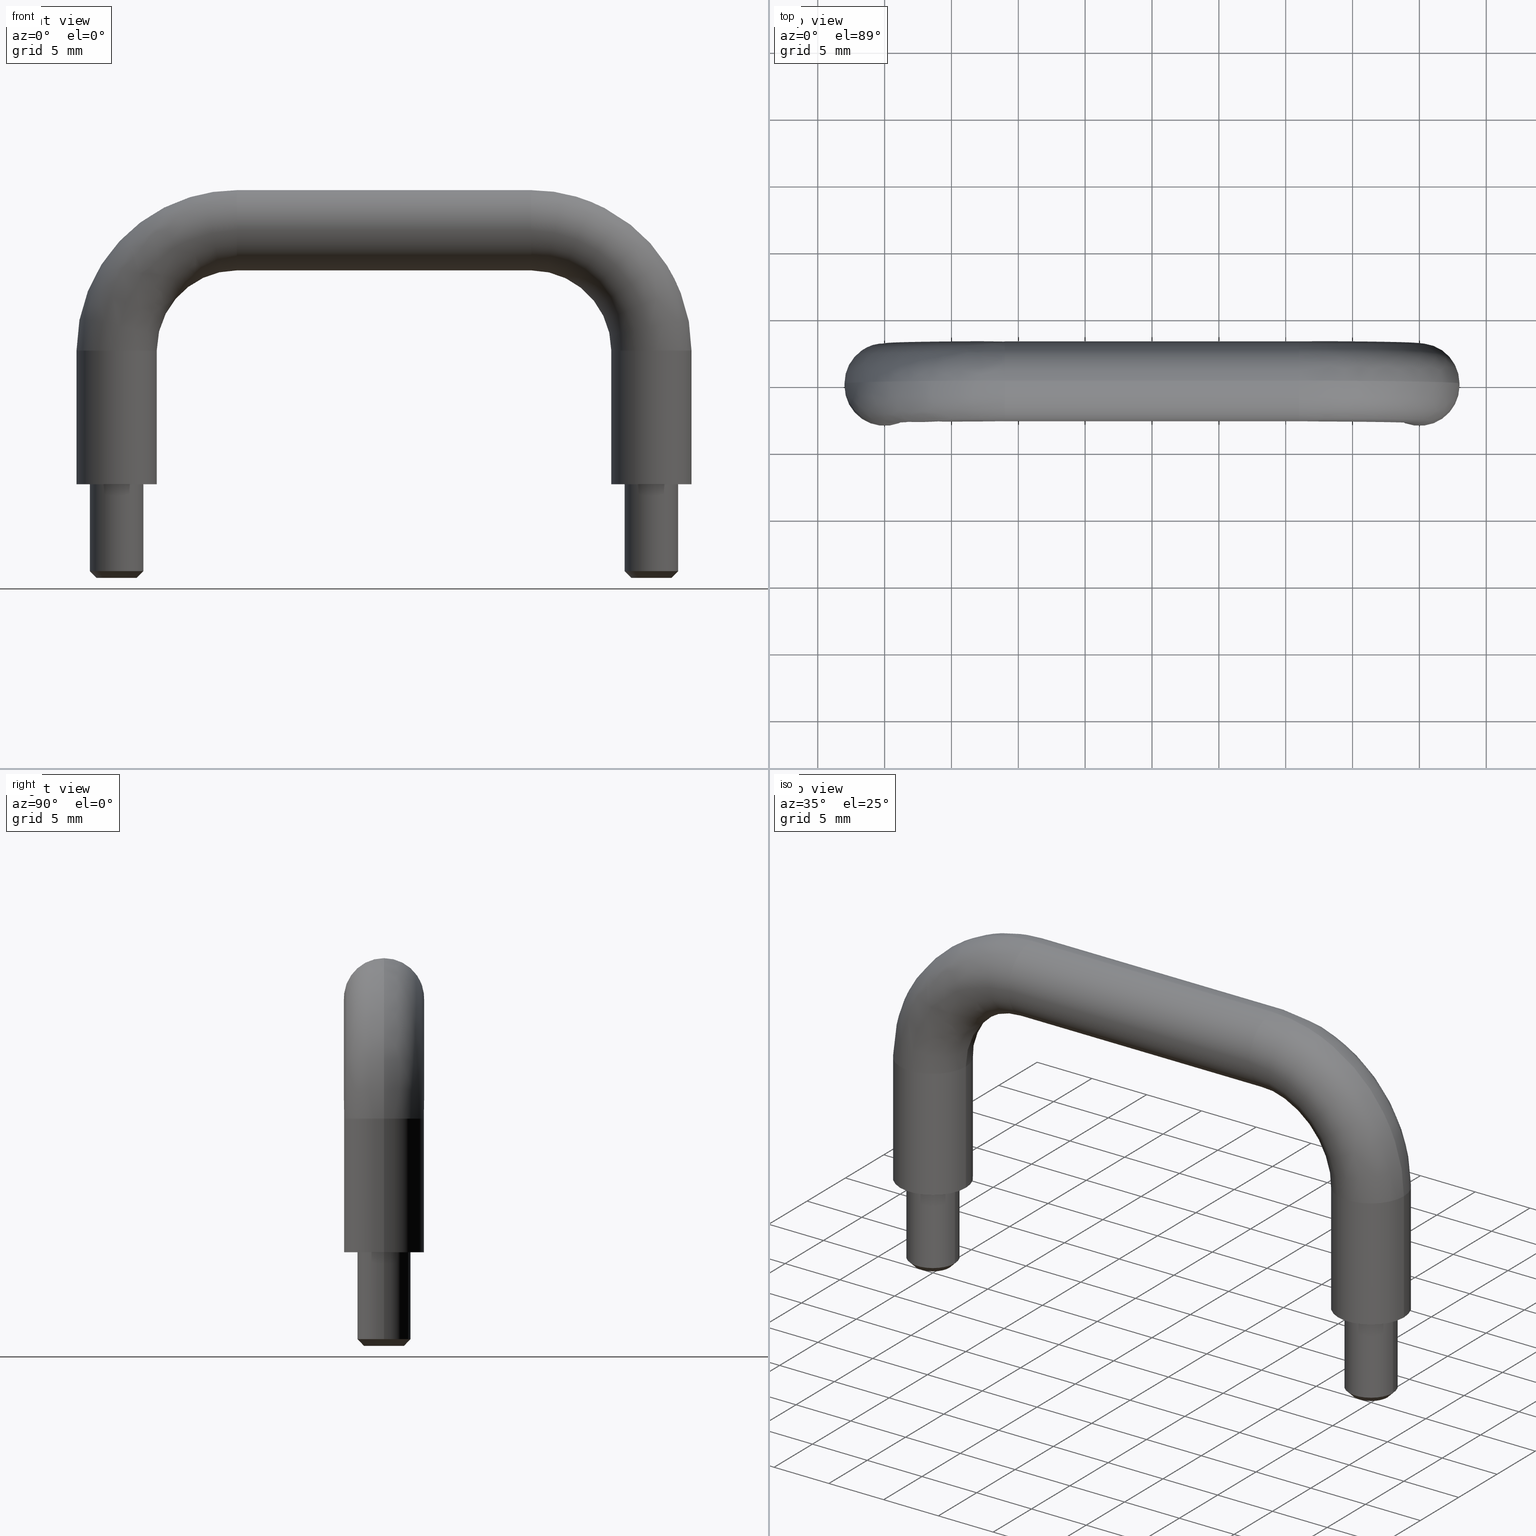
[diagram: canonical four-view strip — front | top / right | iso, engineering-drawing reading convention]
A machine part, canonical four-view strip (front | top / right | iso — engineering-drawing reading convention). The complete STEP part file that produces these views, byte-faithful:
ISO-10303-21;
HEADER;

FILE_DESCRIPTION( (''), '2;1');
FILE_NAME ('PC50.1864.THA_31SUS_2_NEJI_493.stp','2021-09-06T11:20:30',(''),(''),'spGate 17.5.2','','');

FILE_SCHEMA (('AUTOMOTIVE_DESIGN'));
ENDSEC;

DATA;
#10=(GEOMETRIC_REPRESENTATION_CONTEXT(3) GLOBAL_UNCERTAINTY_ASSIGNED_CONTEXT((#11)) GLOBAL_UNIT_ASSIGNED_CONTEXT((#12,#13,#14)) REPRESENTATION_CONTEXT('ID1','3D'));
#11=UNCERTAINTY_MEASURE_WITH_UNIT(LENGTH_MEASURE(0.01),#15,'DISTANCE_ACCURACY_VALUE','Maximum model space distance between geometric entities at asserted connectivities');
#12=(NAMED_UNIT(*) SI_UNIT($,.STERADIAN.) SOLID_ANGLE_UNIT());
#13=(CONVERSION_BASED_UNIT('DEGREE',#16) NAMED_UNIT(#17) PLANE_ANGLE_UNIT());
#14=(LENGTH_UNIT() NAMED_UNIT(*) SI_UNIT(.MILLI.,.METRE.));
#15=(LENGTH_UNIT() NAMED_UNIT(*) SI_UNIT(.MILLI.,.METRE.));
#16=PLANE_ANGLE_MEASURE_WITH_UNIT(PLANE_ANGLE_MEASURE(0.01745329252),#18);
#17=DIMENSIONAL_EXPONENTS(0.0,0.0,0.0,0.0,0.0,0.0,0.0);
#18=(NAMED_UNIT(*) PLANE_ANGLE_UNIT() SI_UNIT($,.RADIAN.));
#19=MANIFOLD_SOLID_BREP('THA_31SUS_2_NEJI',#31);
#20=ADVANCED_BREP_SHAPE_REPRESENTATION('',(#19),#10);
#21=APPLICATION_CONTEXT('');
#22=APPLICATION_PROTOCOL_DEFINITION('International Standard','automotive_design',1999,#21);
#23=PRODUCT_DEFINITION_CONTEXT('',#21,'design');
#24=PRODUCT_CONTEXT('',#21,'mechanical');
#25=PRODUCT('','','',(#24));
#26=PRODUCT_DEFINITION_FORMATION_WITH_SPECIFIED_SOURCE('','',#25,.NOT_KNOWN.);
#27=PRODUCT_RELATED_PRODUCT_CATEGORY('tool','tool',(#25));
#28=PRODUCT_DEFINITION('','',#26,#23);
#29=PRODUCT_DEFINITION_SHAPE('','',#28);
#30=SHAPE_DEFINITION_REPRESENTATION(#29,#20);
#31=CLOSED_SHELL('',(#40,#41,#42,#43,#44,#45,#46,#47,#48,#49,#50,#51,#52,#53,#54,#55,#56,#57,#58,#59,#60,#61));
#32=COLOUR_RGB('',0.00000000000E+00,0.00000000000E+00,0.00000000000E+00);
#33=FILL_AREA_STYLE_COLOUR('',#32);
#34=FILL_AREA_STYLE('',(#33));
#35=SURFACE_STYLE_FILL_AREA(#34);
#36=SURFACE_SIDE_STYLE('',(#35));
#37=SURFACE_STYLE_USAGE(.BOTH.,#36);
#38=PRESENTATION_STYLE_ASSIGNMENT((#37));
#39=STYLED_ITEM('',(#38),#19);
#40=ADVANCED_FACE('',(#63),#62,.T.);
#41=ADVANCED_FACE('',(#73,#74),#72,.F.);
#42=ADVANCED_FACE('',(#84),#83,.T.);
#43=ADVANCED_FACE('',(#94),#93,.T.);
#44=ADVANCED_FACE('',(#104,#105),#103,.F.);
#45=ADVANCED_FACE('',(#115),#114,.T.);
#46=ADVANCED_FACE('',(#125),#124,.T.);
#47=ADVANCED_FACE('',(#135),#134,.T.);
#48=ADVANCED_FACE('',(#145),#144,.T.);
#49=ADVANCED_FACE('',(#155),#154,.T.);
#50=ADVANCED_FACE('',(#165),#164,.T.);
#51=ADVANCED_FACE('',(#175),#174,.T.);
#52=ADVANCED_FACE('',(#185),#184,.T.);
#53=ADVANCED_FACE('',(#195),#194,.T.);
#54=ADVANCED_FACE('',(#205),#204,.T.);
#55=ADVANCED_FACE('',(#215),#214,.T.);
#56=ADVANCED_FACE('',(#225),#224,.T.);
#57=ADVANCED_FACE('',(#235),#234,.T.);
#58=ADVANCED_FACE('',(#245),#244,.T.);
#59=ADVANCED_FACE('',(#255),#254,.T.);
#60=ADVANCED_FACE('',(#265),#264,.T.);
#61=ADVANCED_FACE('',(#275),#274,.T.);
#62=PLANE('',#287);
#63=FACE_OUTER_BOUND('',#288,.T.);
#64=COLOUR_RGB('',1.00000000000E+00,1.00000000000E+00,1.00000000000E+00);
#65=FILL_AREA_STYLE_COLOUR('',#64);
#66=FILL_AREA_STYLE('',(#65));
#67=SURFACE_STYLE_FILL_AREA(#66);
#68=SURFACE_SIDE_STYLE('',(#67));
#69=SURFACE_STYLE_USAGE(.BOTH.,#68);
#70=PRESENTATION_STYLE_ASSIGNMENT((#69));
#71=STYLED_ITEM('',(#70),#40);
#72=PLANE('',#292);
#73=FACE_OUTER_BOUND('',#293,.T.);
#74=FACE_BOUND('',#294,.T.);
#75=COLOUR_RGB('',1.00000000000E+00,1.00000000000E+00,1.00000000000E+00);
#76=FILL_AREA_STYLE_COLOUR('',#75);
#77=FILL_AREA_STYLE('',(#76));
#78=SURFACE_STYLE_FILL_AREA(#77);
#79=SURFACE_SIDE_STYLE('',(#78));
#80=SURFACE_STYLE_USAGE(.BOTH.,#79);
#81=PRESENTATION_STYLE_ASSIGNMENT((#80));
#82=STYLED_ITEM('',(#81),#41);
#83=( BOUNDED_SURFACE() B_SPLINE_SURFACE( 3,3,((#295,#296,#297,#298,#299,#300,#301),(#302,#303,#304,#305,#306,#307,#308),(#309,#310,#311,#312,#313,#314,#315),(#316,#317,#318,#319,#320,#321,#322),(#323,#324,#325,#326,#327,#328,#329),(#330,#331,#332,#333,#334,#335,#336),(#337,#338,#339,#340,#341,#342,#343)), .UNSPECIFIED.,.F.,.F.,.F.) B_SPLINE_SURFACE_WITH_KNOTS((4,1,1,1,4),(4,1,1,1,4),(0.00000000000E+00,2.50000000000E-01,5.00000000000E-01,7.50000000000E-01,1.00000000000E+00),(0.00000000000E+00,2.49559115838E-01,5.00000000000E-01,7.50440884162E-01,1.00000000000E+00), .UNSPECIFIED. ) GEOMETRIC_REPRESENTATION_ITEM() RATIONAL_B_SPLINE_SURFACE(((1.00000000000E+00,1.00000000000E+00,1.00000000000E+00,1.00000000000E+00,1.00000000000E+00,1.00000000000E+00,1.00000000000E+00),(1.00000000000E+00,1.00000000000E+00,1.00000000000E+00,1.00000000000E+00,1.00000000000E+00,1.00000000000E+00,1.00000000000E+00),(1.00000000000E+00,1.00000000000E+00,1.00000000000E+00,1.00000000000E+00,1.00000000000E+00,1.00000000000E+00,1.00000000000E+00),(1.00000000000E+00,1.00000000000E+00,1.00000000000E+00,1.00000000000E+00,1.00000000000E+00,1.00000000000E+00,1.00000000000E+00),(1.00000000000E+00,1.00000000000E+00,1.00000000000E+00,1.00000000000E+00,1.00000000000E+00,1.00000000000E+00,1.00000000000E+00),(1.00000000000E+00,1.00000000000E+00,1.00000000000E+00,1.00000000000E+00,1.00000000000E+00,1.00000000000E+00,1.00000000000E+00),(1.00000000000E+00,1.00000000000E+00,1.00000000000E+00,1.00000000000E+00,1.00000000000E+00,1.00000000000E+00,1.00000000000E+00))) REPRESENTATION_ITEM('') SURFACE() );
#84=FACE_OUTER_BOUND('',#344,.T.);
#85=COLOUR_RGB('',1.00000000000E+00,1.00000000000E+00,1.00000000000E+00);
#86=FILL_AREA_STYLE_COLOUR('',#85);
#87=FILL_AREA_STYLE('',(#86));
#88=SURFACE_STYLE_FILL_AREA(#87);
#89=SURFACE_SIDE_STYLE('',(#88));
#90=SURFACE_STYLE_USAGE(.BOTH.,#89);
#91=PRESENTATION_STYLE_ASSIGNMENT((#90));
#92=STYLED_ITEM('',(#91),#42);
#93=( BOUNDED_SURFACE() B_SPLINE_SURFACE( 3,3,((#345,#346,#347,#348,#349,#350,#351),(#352,#353,#354,#355,#356,#357,#358),(#359,#360,#361,#362,#363,#364,#365),(#366,#367,#368,#369,#370,#371,#372),(#373,#374,#375,#376,#377,#378,#379),(#380,#381,#382,#383,#384,#385,#386),(#387,#388,#389,#390,#391,#392,#393)), .UNSPECIFIED.,.F.,.F.,.F.) B_SPLINE_SURFACE_WITH_KNOTS((4,1,1,1,4),(4,1,1,1,4),(0.00000000000E+00,2.50000000000E-01,5.00000000000E-01,7.50000000000E-01,1.00000000000E+00),(0.00000000000E+00,2.49559115838E-01,5.00000000000E-01,7.50440884162E-01,1.00000000000E+00), .UNSPECIFIED. ) GEOMETRIC_REPRESENTATION_ITEM() RATIONAL_B_SPLINE_SURFACE(((1.00000000000E+00,1.00000000000E+00,1.00000000000E+00,1.00000000000E+00,1.00000000000E+00,1.00000000000E+00,1.00000000000E+00),(1.00000000000E+00,1.00000000000E+00,1.00000000000E+00,1.00000000000E+00,1.00000000000E+00,1.00000000000E+00,1.00000000000E+00),(1.00000000000E+00,1.00000000000E+00,1.00000000000E+00,1.00000000000E+00,1.00000000000E+00,1.00000000000E+00,1.00000000000E+00),(1.00000000000E+00,1.00000000000E+00,1.00000000000E+00,1.00000000000E+00,1.00000000000E+00,1.00000000000E+00,1.00000000000E+00),(1.00000000000E+00,1.00000000000E+00,1.00000000000E+00,1.00000000000E+00,1.00000000000E+00,1.00000000000E+00,1.00000000000E+00),(1.00000000000E+00,1.00000000000E+00,1.00000000000E+00,1.00000000000E+00,1.00000000000E+00,1.00000000000E+00,1.00000000000E+00),(1.00000000000E+00,1.00000000000E+00,1.00000000000E+00,1.00000000000E+00,1.00000000000E+00,1.00000000000E+00,1.00000000000E+00))) REPRESENTATION_ITEM('') SURFACE() );
#94=FACE_OUTER_BOUND('',#394,.T.);
#95=COLOUR_RGB('',1.00000000000E+00,1.00000000000E+00,1.00000000000E+00);
#96=FILL_AREA_STYLE_COLOUR('',#95);
#97=FILL_AREA_STYLE('',(#96));
#98=SURFACE_STYLE_FILL_AREA(#97);
#99=SURFACE_SIDE_STYLE('',(#98));
#100=SURFACE_STYLE_USAGE(.BOTH.,#99);
#101=PRESENTATION_STYLE_ASSIGNMENT((#100));
#102=STYLED_ITEM('',(#101),#43);
#103=PLANE('',#398);
#104=FACE_OUTER_BOUND('',#399,.T.);
#105=FACE_BOUND('',#400,.T.);
#106=COLOUR_RGB('',1.00000000000E+00,1.00000000000E+00,1.00000000000E+00);
#107=FILL_AREA_STYLE_COLOUR('',#106);
#108=FILL_AREA_STYLE('',(#107));
#109=SURFACE_STYLE_FILL_AREA(#108);
#110=SURFACE_SIDE_STYLE('',(#109));
#111=SURFACE_STYLE_USAGE(.BOTH.,#110);
#112=PRESENTATION_STYLE_ASSIGNMENT((#111));
#113=STYLED_ITEM('',(#112),#44);
#114=PLANE('',#404);
#115=FACE_OUTER_BOUND('',#405,.T.);
#116=COLOUR_RGB('',1.00000000000E+00,1.00000000000E+00,1.00000000000E+00);
#117=FILL_AREA_STYLE_COLOUR('',#116);
#118=FILL_AREA_STYLE('',(#117));
#119=SURFACE_STYLE_FILL_AREA(#118);
#120=SURFACE_SIDE_STYLE('',(#119));
#121=SURFACE_STYLE_USAGE(.BOTH.,#120);
#122=PRESENTATION_STYLE_ASSIGNMENT((#121));
#123=STYLED_ITEM('',(#122),#45);
#124=CYLINDRICAL_SURFACE('',#409,3.00000000000E+00);
#125=FACE_OUTER_BOUND('',#410,.T.);
#126=COLOUR_RGB('',1.00000000000E+00,1.00000000000E+00,1.00000000000E+00);
#127=FILL_AREA_STYLE_COLOUR('',#126);
#128=FILL_AREA_STYLE('',(#127));
#129=SURFACE_STYLE_FILL_AREA(#128);
#130=SURFACE_SIDE_STYLE('',(#129));
#131=SURFACE_STYLE_USAGE(.BOTH.,#130);
#132=PRESENTATION_STYLE_ASSIGNMENT((#131));
#133=STYLED_ITEM('',(#132),#46);
#134=CYLINDRICAL_SURFACE('',#414,3.00000000000E+00);
#135=FACE_OUTER_BOUND('',#415,.T.);
#136=COLOUR_RGB('',1.00000000000E+00,1.00000000000E+00,1.00000000000E+00);
#137=FILL_AREA_STYLE_COLOUR('',#136);
#138=FILL_AREA_STYLE('',(#137));
#139=SURFACE_STYLE_FILL_AREA(#138);
#140=SURFACE_SIDE_STYLE('',(#139));
#141=SURFACE_STYLE_USAGE(.BOTH.,#140);
#142=PRESENTATION_STYLE_ASSIGNMENT((#141));
#143=STYLED_ITEM('',(#142),#47);
#144=CYLINDRICAL_SURFACE('',#419,2.00000000000E+00);
#145=FACE_OUTER_BOUND('',#420,.T.);
#146=COLOUR_RGB('',1.00000000000E+00,1.00000000000E+00,1.00000000000E+00);
#147=FILL_AREA_STYLE_COLOUR('',#146);
#148=FILL_AREA_STYLE('',(#147));
#149=SURFACE_STYLE_FILL_AREA(#148);
#150=SURFACE_SIDE_STYLE('',(#149));
#151=SURFACE_STYLE_USAGE(.BOTH.,#150);
#152=PRESENTATION_STYLE_ASSIGNMENT((#151));
#153=STYLED_ITEM('',(#152),#48);
#154=CYLINDRICAL_SURFACE('',#424,2.00000000000E+00);
#155=FACE_OUTER_BOUND('',#425,.T.);
#156=COLOUR_RGB('',1.00000000000E+00,1.00000000000E+00,1.00000000000E+00);
#157=FILL_AREA_STYLE_COLOUR('',#156);
#158=FILL_AREA_STYLE('',(#157));
#159=SURFACE_STYLE_FILL_AREA(#158);
#160=SURFACE_SIDE_STYLE('',(#159));
#161=SURFACE_STYLE_USAGE(.BOTH.,#160);
#162=PRESENTATION_STYLE_ASSIGNMENT((#161));
#163=STYLED_ITEM('',(#162),#49);
#164=( BOUNDED_SURFACE() B_SPLINE_SURFACE( 2,1,((#426,#427),(#428,#429),(#430,#431),(#432,#433),(#434,#435)), .UNSPECIFIED.,.F.,.F.,.F.) B_SPLINE_SURFACE_WITH_KNOTS((3,2,3),(2,2),(0.00000000000E+00,5.00000000000E-01,1.00000000000E+00),(0.00000000000E+00,1.00000000000E+00), .UNSPECIFIED. ) GEOMETRIC_REPRESENTATION_ITEM() RATIONAL_B_SPLINE_SURFACE(((1.00000000000E+00,1.00000000000E+00),(7.07106781187E-01,7.07106781187E-01),(1.00000000000E+00,1.00000000000E+00),(7.07106781187E-01,7.07106781187E-01),(1.00000000000E+00,1.00000000000E+00))) REPRESENTATION_ITEM('') SURFACE() );
#165=FACE_OUTER_BOUND('',#436,.T.);
#166=COLOUR_RGB('',1.00000000000E+00,1.00000000000E+00,1.00000000000E+00);
#167=FILL_AREA_STYLE_COLOUR('',#166);
#168=FILL_AREA_STYLE('',(#167));
#169=SURFACE_STYLE_FILL_AREA(#168);
#170=SURFACE_SIDE_STYLE('',(#169));
#171=SURFACE_STYLE_USAGE(.BOTH.,#170);
#172=PRESENTATION_STYLE_ASSIGNMENT((#171));
#173=STYLED_ITEM('',(#172),#50);
#174=( BOUNDED_SURFACE() B_SPLINE_SURFACE( 2,1,((#437,#438),(#439,#440),(#441,#442),(#443,#444),(#445,#446)), .UNSPECIFIED.,.F.,.F.,.F.) B_SPLINE_SURFACE_WITH_KNOTS((3,2,3),(2,2),(0.00000000000E+00,5.00000000000E-01,1.00000000000E+00),(0.00000000000E+00,1.00000000000E+00), .UNSPECIFIED. ) GEOMETRIC_REPRESENTATION_ITEM() RATIONAL_B_SPLINE_SURFACE(((1.00000000000E+00,1.00000000000E+00),(7.07106781187E-01,7.07106781187E-01),(1.00000000000E+00,1.00000000000E+00),(7.07106781187E-01,7.07106781187E-01),(1.00000000000E+00,1.00000000000E+00))) REPRESENTATION_ITEM('') SURFACE() );
#175=FACE_OUTER_BOUND('',#447,.T.);
#176=COLOUR_RGB('',1.00000000000E+00,1.00000000000E+00,1.00000000000E+00);
#177=FILL_AREA_STYLE_COLOUR('',#176);
#178=FILL_AREA_STYLE('',(#177));
#179=SURFACE_STYLE_FILL_AREA(#178);
#180=SURFACE_SIDE_STYLE('',(#179));
#181=SURFACE_STYLE_USAGE(.BOTH.,#180);
#182=PRESENTATION_STYLE_ASSIGNMENT((#181));
#183=STYLED_ITEM('',(#182),#51);
#184=CYLINDRICAL_SURFACE('',#451,3.00000000000E+00);
#185=FACE_OUTER_BOUND('',#452,.T.);
#186=COLOUR_RGB('',1.00000000000E+00,1.00000000000E+00,1.00000000000E+00);
#187=FILL_AREA_STYLE_COLOUR('',#186);
#188=FILL_AREA_STYLE('',(#187));
#189=SURFACE_STYLE_FILL_AREA(#188);
#190=SURFACE_SIDE_STYLE('',(#189));
#191=SURFACE_STYLE_USAGE(.BOTH.,#190);
#192=PRESENTATION_STYLE_ASSIGNMENT((#191));
#193=STYLED_ITEM('',(#192),#52);
#194=CYLINDRICAL_SURFACE('',#456,3.00000000000E+00);
#195=FACE_OUTER_BOUND('',#457,.T.);
#196=COLOUR_RGB('',1.00000000000E+00,1.00000000000E+00,1.00000000000E+00);
#197=FILL_AREA_STYLE_COLOUR('',#196);
#198=FILL_AREA_STYLE('',(#197));
#199=SURFACE_STYLE_FILL_AREA(#198);
#200=SURFACE_SIDE_STYLE('',(#199));
#201=SURFACE_STYLE_USAGE(.BOTH.,#200);
#202=PRESENTATION_STYLE_ASSIGNMENT((#201));
#203=STYLED_ITEM('',(#202),#53);
#204=( BOUNDED_SURFACE() B_SPLINE_SURFACE( 2,2,((#458,#459,#460,#461,#462),(#463,#464,#465,#466,#467),(#468,#469,#470,#471,#472),(#473,#474,#475,#476,#477),(#478,#479,#480,#481,#482)), .UNSPECIFIED.,.F.,.F.,.F.) B_SPLINE_SURFACE_WITH_KNOTS((3,2,3),(3,2,3),(-3.14159265359E+00,-1.57079632679E+00,0.00000000000E+00),(2.35619450084E+00,3.14159265359E+00,3.92699082763E+00), .UNSPECIFIED. ) GEOMETRIC_REPRESENTATION_ITEM() RATIONAL_B_SPLINE_SURFACE(((8.53553390593E-01,8.53553392578E-01,1.00000000000E+00,8.53553388609E-01,8.53553390593E-01),(6.03553390593E-01,6.03553391997E-01,7.07106781187E-01,6.03553389190E-01,6.03553390593E-01),(8.53553390593E-01,8.53553392578E-01,1.00000000000E+00,8.53553388609E-01,8.53553390593E-01),(6.03553390593E-01,6.03553391997E-01,7.07106781187E-01,6.03553389190E-01,6.03553390593E-01),(8.53553390593E-01,8.53553392578E-01,1.00000000000E+00,8.53553388609E-01,8.53553390593E-01))) REPRESENTATION_ITEM('') SURFACE() );
#205=FACE_OUTER_BOUND('',#483,.T.);
#206=COLOUR_RGB('',1.00000000000E+00,1.00000000000E+00,1.00000000000E+00);
#207=FILL_AREA_STYLE_COLOUR('',#206);
#208=FILL_AREA_STYLE('',(#207));
#209=SURFACE_STYLE_FILL_AREA(#208);
#210=SURFACE_SIDE_STYLE('',(#209));
#211=SURFACE_STYLE_USAGE(.BOTH.,#210);
#212=PRESENTATION_STYLE_ASSIGNMENT((#211));
#213=STYLED_ITEM('',(#212),#54);
#214=( BOUNDED_SURFACE() B_SPLINE_SURFACE( 2,2,((#484,#485,#486,#487,#488),(#489,#490,#491,#492,#493),(#494,#495,#496,#497,#498),(#499,#500,#501,#502,#503),(#504,#505,#506,#507,#508)), .UNSPECIFIED.,.F.,.F.,.F.) B_SPLINE_SURFACE_WITH_KNOTS((3,2,3),(3,2,3),(0.00000000000E+00,1.57079632679E+00,3.14159265359E+00),(2.35619450084E+00,3.14159265359E+00,3.92699082763E+00), .UNSPECIFIED. ) GEOMETRIC_REPRESENTATION_ITEM() RATIONAL_B_SPLINE_SURFACE(((8.53553390593E-01,8.53553392578E-01,1.00000000000E+00,8.53553388609E-01,8.53553390593E-01),(6.03553390593E-01,6.03553391997E-01,7.07106781187E-01,6.03553389190E-01,6.03553390593E-01),(8.53553390593E-01,8.53553392578E-01,1.00000000000E+00,8.53553388609E-01,8.53553390593E-01),(6.03553390593E-01,6.03553391997E-01,7.07106781187E-01,6.03553389190E-01,6.03553390593E-01),(8.53553390593E-01,8.53553392578E-01,1.00000000000E+00,8.53553388609E-01,8.53553390593E-01))) REPRESENTATION_ITEM('') SURFACE() );
#215=FACE_OUTER_BOUND('',#509,.T.);
#216=COLOUR_RGB('',1.00000000000E+00,1.00000000000E+00,1.00000000000E+00);
#217=FILL_AREA_STYLE_COLOUR('',#216);
#218=FILL_AREA_STYLE('',(#217));
#219=SURFACE_STYLE_FILL_AREA(#218);
#220=SURFACE_SIDE_STYLE('',(#219));
#221=SURFACE_STYLE_USAGE(.BOTH.,#220);
#222=PRESENTATION_STYLE_ASSIGNMENT((#221));
#223=STYLED_ITEM('',(#222),#55);
#224=CYLINDRICAL_SURFACE('',#513,2.00000000000E+00);
#225=FACE_OUTER_BOUND('',#514,.T.);
#226=COLOUR_RGB('',1.00000000000E+00,1.00000000000E+00,1.00000000000E+00);
#227=FILL_AREA_STYLE_COLOUR('',#226);
#228=FILL_AREA_STYLE('',(#227));
#229=SURFACE_STYLE_FILL_AREA(#228);
#230=SURFACE_SIDE_STYLE('',(#229));
#231=SURFACE_STYLE_USAGE(.BOTH.,#230);
#232=PRESENTATION_STYLE_ASSIGNMENT((#231));
#233=STYLED_ITEM('',(#232),#56);
#234=CYLINDRICAL_SURFACE('',#518,2.00000000000E+00);
#235=FACE_OUTER_BOUND('',#519,.T.);
#236=COLOUR_RGB('',1.00000000000E+00,1.00000000000E+00,1.00000000000E+00);
#237=FILL_AREA_STYLE_COLOUR('',#236);
#238=FILL_AREA_STYLE('',(#237));
#239=SURFACE_STYLE_FILL_AREA(#238);
#240=SURFACE_SIDE_STYLE('',(#239));
#241=SURFACE_STYLE_USAGE(.BOTH.,#240);
#242=PRESENTATION_STYLE_ASSIGNMENT((#241));
#243=STYLED_ITEM('',(#242),#57);
#244=( BOUNDED_SURFACE() B_SPLINE_SURFACE( 2,1,((#520,#521),(#522,#523),(#524,#525),(#526,#527),(#528,#529)), .UNSPECIFIED.,.F.,.F.,.F.) B_SPLINE_SURFACE_WITH_KNOTS((3,2,3),(2,2),(0.00000000000E+00,5.00000000000E-01,1.00000000000E+00),(0.00000000000E+00,1.00000000000E+00), .UNSPECIFIED. ) GEOMETRIC_REPRESENTATION_ITEM() RATIONAL_B_SPLINE_SURFACE(((1.00000000000E+00,1.00000000000E+00),(7.07106781187E-01,7.07106781187E-01),(1.00000000000E+00,1.00000000000E+00),(7.07106781187E-01,7.07106781187E-01),(1.00000000000E+00,1.00000000000E+00))) REPRESENTATION_ITEM('') SURFACE() );
#245=FACE_OUTER_BOUND('',#530,.T.);
#246=COLOUR_RGB('',1.00000000000E+00,1.00000000000E+00,1.00000000000E+00);
#247=FILL_AREA_STYLE_COLOUR('',#246);
#248=FILL_AREA_STYLE('',(#247));
#249=SURFACE_STYLE_FILL_AREA(#248);
#250=SURFACE_SIDE_STYLE('',(#249));
#251=SURFACE_STYLE_USAGE(.BOTH.,#250);
#252=PRESENTATION_STYLE_ASSIGNMENT((#251));
#253=STYLED_ITEM('',(#252),#58);
#254=( BOUNDED_SURFACE() B_SPLINE_SURFACE( 2,1,((#531,#532),(#533,#534),(#535,#536),(#537,#538),(#539,#540)), .UNSPECIFIED.,.F.,.F.,.F.) B_SPLINE_SURFACE_WITH_KNOTS((3,2,3),(2,2),(0.00000000000E+00,5.00000000000E-01,1.00000000000E+00),(0.00000000000E+00,1.00000000000E+00), .UNSPECIFIED. ) GEOMETRIC_REPRESENTATION_ITEM() RATIONAL_B_SPLINE_SURFACE(((1.00000000000E+00,1.00000000000E+00),(7.07106781187E-01,7.07106781187E-01),(1.00000000000E+00,1.00000000000E+00),(7.07106781187E-01,7.07106781187E-01),(1.00000000000E+00,1.00000000000E+00))) REPRESENTATION_ITEM('') SURFACE() );
#255=FACE_OUTER_BOUND('',#541,.T.);
#256=COLOUR_RGB('',1.00000000000E+00,1.00000000000E+00,1.00000000000E+00);
#257=FILL_AREA_STYLE_COLOUR('',#256);
#258=FILL_AREA_STYLE('',(#257));
#259=SURFACE_STYLE_FILL_AREA(#258);
#260=SURFACE_SIDE_STYLE('',(#259));
#261=SURFACE_STYLE_USAGE(.BOTH.,#260);
#262=PRESENTATION_STYLE_ASSIGNMENT((#261));
#263=STYLED_ITEM('',(#262),#59);
#264=CYLINDRICAL_SURFACE('',#545,3.00000000000E+00);
#265=FACE_OUTER_BOUND('',#546,.T.);
#266=COLOUR_RGB('',1.00000000000E+00,1.00000000000E+00,1.00000000000E+00);
#267=FILL_AREA_STYLE_COLOUR('',#266);
#268=FILL_AREA_STYLE('',(#267));
#269=SURFACE_STYLE_FILL_AREA(#268);
#270=SURFACE_SIDE_STYLE('',(#269));
#271=SURFACE_STYLE_USAGE(.BOTH.,#270);
#272=PRESENTATION_STYLE_ASSIGNMENT((#271));
#273=STYLED_ITEM('',(#272),#60);
#274=CYLINDRICAL_SURFACE('',#550,3.00000000000E+00);
#275=FACE_OUTER_BOUND('',#551,.T.);
#276=COLOUR_RGB('',1.00000000000E+00,1.00000000000E+00,1.00000000000E+00);
#277=FILL_AREA_STYLE_COLOUR('',#276);
#278=FILL_AREA_STYLE('',(#277));
#279=SURFACE_STYLE_FILL_AREA(#278);
#280=SURFACE_SIDE_STYLE('',(#279));
#281=SURFACE_STYLE_USAGE(.BOTH.,#280);
#282=PRESENTATION_STYLE_ASSIGNMENT((#281));
#283=STYLED_ITEM('',(#282),#61);
#284=CARTESIAN_POINT('',(-2.34499999999E+01,3.11769145362E+00,-2.30000000000E+01));
#285=DIRECTION('',(0.00000000000E+00,0.00000000000E+00,-1.00000000000E+00));
#286=DIRECTION('',(1.00000000000E+00,0.00000000000E+00,0.00000000000E+00));
#287=AXIS2_PLACEMENT_3D('',#284,#285,#286);
#288=EDGE_LOOP('',(#552,#553));
#289=CARTESIAN_POINT('',(1.60999999999E+01,-6.23538290725E+00,-1.60000000000E+01));
#290=DIRECTION('',(0.00000000000E+00,0.00000000000E+00,1.00000000000E+00));
#291=DIRECTION('',(1.00000000000E+00,0.00000000000E+00,-0.00000000000E+00));
#292=AXIS2_PLACEMENT_3D('',#289,#290,#291);
#293=EDGE_LOOP('',(#554,#555));
#294=EDGE_LOOP('',(#556,#557));
#295=CARTESIAN_POINT('',(1.69999999999E+01,-3.67381906147E-16,-6.00000000000E+00));
#296=CARTESIAN_POINT('',(1.69999999999E+01,-3.67381906147E-16,-5.21598684610E+00));
#297=CARTESIAN_POINT('',(1.66881902111E+01,-3.67381906147E-16,-3.64564053599E+00));
#298=CARTESIAN_POINT('',(1.53535188052E+01,-3.67381906147E-16,-1.64648119474E+00));
#299=CARTESIAN_POINT('',(1.33543594639E+01,-3.67381906147E-16,-3.11809788756E-01));
#300=CARTESIAN_POINT('',(1.17840131538E+01,-3.67381906147E-16,3.78482820015E-15));
#301=CARTESIAN_POINT('',(1.09999999999E+01,-3.67381906147E-16,3.55271367880E-15));
#302=CARTESIAN_POINT('',(1.69960863756E+01,-7.84902571646E-01,-6.00000000000E+00));
#303=CARTESIAN_POINT('',(1.69960863756E+01,-7.84902571646E-01,-5.20327873106E+00));
#304=CARTESIAN_POINT('',(1.66840071326E+01,-7.84902571647E-01,-3.65333648329E+00));
#305=CARTESIAN_POINT('',(1.53523403333E+01,-7.84902571647E-01,-1.64765966658E+00));
#306=CARTESIAN_POINT('',(1.33466635166E+01,-7.84902571647E-01,-3.15992867272E-01));
#307=CARTESIAN_POINT('',(1.17967212688E+01,-7.84902571646E-01,-3.91362428601E-03));
#308=CARTESIAN_POINT('',(1.09999999999E+01,-7.84902571646E-01,-3.91362428601E-03));
#309=CARTESIAN_POINT('',(1.76486908706E+01,-2.35139231717E+00,-6.00000000000E+00));
#310=CARTESIAN_POINT('',(1.76486908706E+01,-2.35139231717E+00,-5.10117077798E+00));
#311=CARTESIAN_POINT('',(1.73020948003E+01,-2.35139231717E+00,-3.40510297808E+00));
#312=CARTESIAN_POINT('',(1.58279765903E+01,-2.35139231717E+00,-1.17202340958E+00));
#313=CARTESIAN_POINT('',(1.35948970218E+01,-2.35139231717E+00,3.02094800383E-01));
#314=CARTESIAN_POINT('',(1.18988292219E+01,-2.35139231717E+00,6.48690870700E-01));
#315=CARTESIAN_POINT('',(1.09999999999E+01,-2.35139231717E+00,6.48690870700E-01));
#316=CARTESIAN_POINT('',(1.99999999999E+01,-3.32731061924E+00,-6.00000000000E+00));
#317=CARTESIAN_POINT('',(1.99999999999E+01,-3.32731061924E+00,-4.82398026915E+00));
#318=CARTESIAN_POINT('',(1.95322853168E+01,-3.32731061924E+00,-2.46846080399E+00));
#319=CARTESIAN_POINT('',(1.75302782078E+01,-3.32731061924E+00,5.30278207890E-01));
#320=CARTESIAN_POINT('',(1.45315391959E+01,-3.32731061924E+00,2.53228531687E+00));
#321=CARTESIAN_POINT('',(1.21760197307E+01,-3.32731061924E+00,3.00000000000E+00));
#322=CARTESIAN_POINT('',(1.09999999999E+01,-3.32731061924E+00,3.00000000000E+00));
#323=CARTESIAN_POINT('',(2.23513091292E+01,-2.35139231717E+00,-6.00000000000E+00));
#324=CARTESIAN_POINT('',(2.23513091292E+01,-2.35139231717E+00,-4.54678976032E+00));
#325=CARTESIAN_POINT('',(2.17624758332E+01,-2.35139231717E+00,-1.53181862990E+00));
#326=CARTESIAN_POINT('',(1.92325798253E+01,-2.35139231717E+00,2.23257982536E+00));
#327=CARTESIAN_POINT('',(1.54681813700E+01,-2.35139231717E+00,4.76247583335E+00));
#328=CARTESIAN_POINT('',(1.24532102396E+01,-2.35139231717E+00,5.35130912930E+00));
#329=CARTESIAN_POINT('',(1.09999999999E+01,-2.35139231717E+00,5.35130912930E+00));
#330=CARTESIAN_POINT('',(2.30039136242E+01,-7.84902571646E-01,-6.00000000000E+00));
#331=CARTESIAN_POINT('',(2.30039136242E+01,-7.84902571646E-01,-4.44468180724E+00));
#332=CARTESIAN_POINT('',(2.23805635009E+01,-7.84902571646E-01,-1.28358512468E+00));
#333=CARTESIAN_POINT('',(1.97082160823E+01,-7.84902571646E-01,2.70821608236E+00));
#334=CARTESIAN_POINT('',(1.57164148752E+01,-7.84902571646E-01,5.38056350100E+00));
#335=CARTESIAN_POINT('',(1.25553181927E+01,-7.84902571646E-01,6.00391362429E+00));
#336=CARTESIAN_POINT('',(1.09999999999E+01,-7.84902571646E-01,6.00391362429E+00));
#337=CARTESIAN_POINT('',(2.29999999999E+01,0.00000000000E+00,-6.00000000000E+00));
#338=CARTESIAN_POINT('',(2.29999999999E+01,0.00000000000E+00,-4.43197369220E+00));
#339=CARTESIAN_POINT('',(2.23763804224E+01,0.00000000000E+00,-1.29128107198E+00));
#340=CARTESIAN_POINT('',(1.97070376104E+01,0.00000000000E+00,2.70703761052E+00));
#341=CARTESIAN_POINT('',(1.57087189279E+01,0.00000000000E+00,5.37638042249E+00));
#342=CARTESIAN_POINT('',(1.25680263077E+01,0.00000000000E+00,6.00000000000E+00));
#343=CARTESIAN_POINT('',(1.09999999999E+01,0.00000000000E+00,6.00000000000E+00));
#344=EDGE_LOOP('',(#558,#559,#560,#561));
#345=CARTESIAN_POINT('',(2.29999999999E+01,0.00000000000E+00,-6.00000000000E+00));
#346=CARTESIAN_POINT('',(2.29999999999E+01,0.00000000000E+00,-4.43197369220E+00));
#347=CARTESIAN_POINT('',(2.23763804224E+01,0.00000000000E+00,-1.29128107198E+00));
#348=CARTESIAN_POINT('',(1.97070376104E+01,0.00000000000E+00,2.70703761052E+00));
#349=CARTESIAN_POINT('',(1.57087189279E+01,0.00000000000E+00,5.37638042249E+00));
#350=CARTESIAN_POINT('',(1.25680263077E+01,0.00000000000E+00,6.00000000000E+00));
#351=CARTESIAN_POINT('',(1.09999999999E+01,0.00000000000E+00,6.00000000000E+00));
#352=CARTESIAN_POINT('',(2.30039136242E+01,7.84902571646E-01,-6.00000000000E+00));
#353=CARTESIAN_POINT('',(2.30039136242E+01,7.84902571646E-01,-4.44468180724E+00));
#354=CARTESIAN_POINT('',(2.23805635009E+01,7.84902571646E-01,-1.28358512468E+00));
#355=CARTESIAN_POINT('',(1.97082160823E+01,7.84902571646E-01,2.70821608236E+00));
#356=CARTESIAN_POINT('',(1.57164148752E+01,7.84902571646E-01,5.38056350100E+00));
#357=CARTESIAN_POINT('',(1.25553181927E+01,7.84902571646E-01,6.00391362429E+00));
#358=CARTESIAN_POINT('',(1.09999999999E+01,7.84902571646E-01,6.00391362429E+00));
#359=CARTESIAN_POINT('',(2.23513091292E+01,2.35139231717E+00,-6.00000000000E+00));
#360=CARTESIAN_POINT('',(2.23513091292E+01,2.35139231717E+00,-4.54678976032E+00));
#361=CARTESIAN_POINT('',(2.17624758332E+01,2.35139231717E+00,-1.53181862990E+00));
#362=CARTESIAN_POINT('',(1.92325798253E+01,2.35139231717E+00,2.23257982536E+00));
#363=CARTESIAN_POINT('',(1.54681813700E+01,2.35139231717E+00,4.76247583335E+00));
#364=CARTESIAN_POINT('',(1.24532102396E+01,2.35139231717E+00,5.35130912930E+00));
#365=CARTESIAN_POINT('',(1.09999999999E+01,2.35139231717E+00,5.35130912930E+00));
#366=CARTESIAN_POINT('',(1.99999999999E+01,3.32731061924E+00,-6.00000000000E+00));
#367=CARTESIAN_POINT('',(1.99999999999E+01,3.32731061924E+00,-4.82398026915E+00));
#368=CARTESIAN_POINT('',(1.95322853168E+01,3.32731061924E+00,-2.46846080399E+00));
#369=CARTESIAN_POINT('',(1.75302782078E+01,3.32731061924E+00,5.30278207890E-01));
#370=CARTESIAN_POINT('',(1.45315391959E+01,3.32731061924E+00,2.53228531687E+00));
#371=CARTESIAN_POINT('',(1.21760197307E+01,3.32731061924E+00,3.00000000000E+00));
#372=CARTESIAN_POINT('',(1.09999999999E+01,3.32731061924E+00,3.00000000000E+00));
#373=CARTESIAN_POINT('',(1.76486908706E+01,2.35139231717E+00,-6.00000000000E+00));
#374=CARTESIAN_POINT('',(1.76486908706E+01,2.35139231717E+00,-5.10117077798E+00));
#375=CARTESIAN_POINT('',(1.73020948003E+01,2.35139231717E+00,-3.40510297808E+00));
#376=CARTESIAN_POINT('',(1.58279765903E+01,2.35139231717E+00,-1.17202340958E+00));
#377=CARTESIAN_POINT('',(1.35948970218E+01,2.35139231717E+00,3.02094800383E-01));
#378=CARTESIAN_POINT('',(1.18988292219E+01,2.35139231717E+00,6.48690870700E-01));
#379=CARTESIAN_POINT('',(1.09999999999E+01,2.35139231717E+00,6.48690870700E-01));
#380=CARTESIAN_POINT('',(1.69960863756E+01,7.84902571646E-01,-6.00000000000E+00));
#381=CARTESIAN_POINT('',(1.69960863756E+01,7.84902571646E-01,-5.20327873106E+00));
#382=CARTESIAN_POINT('',(1.66840071326E+01,7.84902571647E-01,-3.65333648329E+00));
#383=CARTESIAN_POINT('',(1.53523403333E+01,7.84902571647E-01,-1.64765966658E+00));
#384=CARTESIAN_POINT('',(1.33466635166E+01,7.84902571647E-01,-3.15992867272E-01));
#385=CARTESIAN_POINT('',(1.17967212688E+01,7.84902571646E-01,-3.91362428600E-03));
#386=CARTESIAN_POINT('',(1.09999999999E+01,7.84902571646E-01,-3.91362428601E-03));
#387=CARTESIAN_POINT('',(1.69999999999E+01,3.67381906147E-16,-6.00000000000E+00));
#388=CARTESIAN_POINT('',(1.69999999999E+01,3.67381906147E-16,-5.21598684610E+00));
#389=CARTESIAN_POINT('',(1.66881902111E+01,3.67381906147E-16,-3.64564053599E+00));
#390=CARTESIAN_POINT('',(1.53535188052E+01,3.67381906147E-16,-1.64648119474E+00));
#391=CARTESIAN_POINT('',(1.33543594639E+01,3.67381906147E-16,-3.11809788756E-01));
#392=CARTESIAN_POINT('',(1.17840131538E+01,3.67381906147E-16,3.78482820015E-15));
#393=CARTESIAN_POINT('',(1.09999999999E+01,3.67381906147E-16,3.55271367880E-15));
#394=EDGE_LOOP('',(#562,#563,#564,#565));
#395=CARTESIAN_POINT('',(-1.30999999999E+01,6.23538290725E+00,-1.60000000000E+01));
#396=DIRECTION('',(0.00000000000E+00,0.00000000000E+00,1.00000000000E+00));
#397=DIRECTION('',(-1.00000000000E+00,0.00000000000E+00,0.00000000000E+00));
#398=AXIS2_PLACEMENT_3D('',#395,#396,#397);
#399=EDGE_LOOP('',(#566,#567));
#400=EDGE_LOOP('',(#568,#569));
#401=CARTESIAN_POINT('',(2.19499999999E+01,-3.11769145362E+00,-2.30000000000E+01));
#402=DIRECTION('',(0.00000000000E+00,0.00000000000E+00,-1.00000000000E+00));
#403=DIRECTION('',(-1.00000000000E+00,0.00000000000E+00,0.00000000000E+00));
#404=AXIS2_PLACEMENT_3D('',#401,#402,#403);
#405=EDGE_LOOP('',(#570,#571));
#406=CARTESIAN_POINT('',(1.99999999999E+01,0.00000000000E+00,-1.10000000000E+01));
#407=DIRECTION('',(0.00000000000E+00,-0.00000000000E+00,1.00000000000E+00));
#408=DIRECTION('',(1.00000000000E+00,-0.00000000000E+00,-0.00000000000E+00));
#409=AXIS2_PLACEMENT_3D('',#406,#407,#408);
#410=EDGE_LOOP('',(#572,#573,#574,#575));
#411=CARTESIAN_POINT('',(1.99999999999E+01,0.00000000000E+00,-1.10000000000E+01));
#412=DIRECTION('',(0.00000000000E+00,-0.00000000000E+00,1.00000000000E+00));
#413=DIRECTION('',(1.00000000000E+00,-0.00000000000E+00,-0.00000000000E+00));
#414=AXIS2_PLACEMENT_3D('',#411,#412,#413);
#415=EDGE_LOOP('',(#576,#577,#578,#579));
#416=CARTESIAN_POINT('',(1.99999999999E+01,0.00000000000E+00,-1.92500000000E+01));
#417=DIRECTION('',(-0.00000000000E+00,0.00000000000E+00,-1.00000000000E+00));
#418=DIRECTION('',(-1.00000000000E+00,-0.00000000000E+00,0.00000000000E+00));
#419=AXIS2_PLACEMENT_3D('',#416,#417,#418);
#420=EDGE_LOOP('',(#580,#581,#582,#583));
#421=CARTESIAN_POINT('',(1.99999999999E+01,0.00000000000E+00,-1.92500000000E+01));
#422=DIRECTION('',(-0.00000000000E+00,0.00000000000E+00,-1.00000000000E+00));
#423=DIRECTION('',(-1.00000000000E+00,-0.00000000000E+00,0.00000000000E+00));
#424=AXIS2_PLACEMENT_3D('',#421,#422,#423);
#425=EDGE_LOOP('',(#584,#585,#586,#587));
#426=CARTESIAN_POINT('',(2.14999999999E+01,8.79353165908E-16,-2.30000000000E+01));
#427=CARTESIAN_POINT('',(2.19999999999E+01,7.89498430537E-16,-2.25000000000E+01));
#428=CARTESIAN_POINT('',(2.14999999999E+01,1.50000000000E+00,-2.30000000000E+01));
#429=CARTESIAN_POINT('',(2.19999999999E+01,2.00000000000E+00,-2.25000000000E+01));
#430=CARTESIAN_POINT('',(1.99999999999E+01,1.50000000000E+00,-2.30000000000E+01));
#431=CARTESIAN_POINT('',(1.99999999999E+01,2.00000000000E+00,-2.25000000000E+01));
#432=CARTESIAN_POINT('',(1.84999999999E+01,1.50000000000E+00,-2.30000000000E+01));
#433=CARTESIAN_POINT('',(1.79999999999E+01,2.00000000000E+00,-2.25000000000E+01));
#434=CARTESIAN_POINT('',(1.84999999999E+01,-5.51091059616E-16,-2.30000000000E+01));
#435=CARTESIAN_POINT('',(1.79999999999E+01,-1.11776053683E-15,-2.25000000000E+01));
#436=EDGE_LOOP('',(#588,#589,#590,#591));
#437=CARTESIAN_POINT('',(1.84999999999E+01,-1.21722487439E-15,-2.30000000000E+01));
#438=CARTESIAN_POINT('',(1.79999999999E+01,-2.00593895653E-15,-2.25000000000E+01));
#439=CARTESIAN_POINT('',(1.84999999999E+01,-1.50000000000E+00,-2.30000000000E+01));
#440=CARTESIAN_POINT('',(1.79999999999E+01,-2.00000000000E+00,-2.25000000000E+01));
#441=CARTESIAN_POINT('',(1.99999999999E+01,-1.50000000000E+00,-2.30000000000E+01));
#442=CARTESIAN_POINT('',(1.99999999999E+01,-2.00000000000E+00,-2.25000000000E+01));
#443=CARTESIAN_POINT('',(2.14999999999E+01,-1.50000000000E+00,-2.30000000000E+01));
#444=CARTESIAN_POINT('',(2.19999999999E+01,-2.00000000000E+00,-2.25000000000E+01));
#445=CARTESIAN_POINT('',(2.14999999999E+01,1.17809294094E-15,-2.30000000000E+01));
#446=CARTESIAN_POINT('',(2.19999999999E+01,1.18781813058E-15,-2.25000000000E+01));
#447=EDGE_LOOP('',(#592,#593,#594,#595));
#448=CARTESIAN_POINT('',(0.00000000000E+00,0.00000000000E+00,3.00000000000E+00));
#449=DIRECTION('',(-1.00000000000E+00,-0.00000000000E+00,0.00000000000E+00));
#450=DIRECTION('',(0.00000000000E+00,0.00000000000E+00,1.00000000000E+00));
#451=AXIS2_PLACEMENT_3D('',#448,#449,#450);
#452=EDGE_LOOP('',(#596,#597,#598,#599));
#453=CARTESIAN_POINT('',(0.00000000000E+00,0.00000000000E+00,3.00000000000E+00));
#454=DIRECTION('',(-1.00000000000E+00,-0.00000000000E+00,0.00000000000E+00));
#455=DIRECTION('',(0.00000000000E+00,0.00000000000E+00,1.00000000000E+00));
#456=AXIS2_PLACEMENT_3D('',#453,#454,#455);
#457=EDGE_LOOP('',(#600,#601,#602,#603));
#458=CARTESIAN_POINT('',(-1.69999999999E+01,1.22025229863E-14,-6.00000000000E+00));
#459=CARTESIAN_POINT('',(-1.69999999999E+01,1.01213915062E-14,-3.51471866522E+00));
#460=CARTESIAN_POINT('',(-1.52426407346E+01,5.09709574154E-15,-1.75735936051E+00));
#461=CARTESIAN_POINT('',(-1.34852814136E+01,7.27998173504E-17,-1.84154123133E-12));
#462=CARTESIAN_POINT('',(-1.09999999999E+01,-4.95149610684E-15,1.41842144981E-13));
#463=CARTESIAN_POINT('',(-1.69999999999E+01,3.00000000000E+00,-6.00000000000E+00));
#464=CARTESIAN_POINT('',(-1.69999999999E+01,3.00000000000E+00,-3.51471866522E+00));
#465=CARTESIAN_POINT('',(-1.52426407346E+01,3.00000000000E+00,-1.75735936051E+00));
#466=CARTESIAN_POINT('',(-1.34852814136E+01,3.00000000000E+00,-1.84186906157E-12));
#467=CARTESIAN_POINT('',(-1.09999999999E+01,3.00000000000E+00,1.41731786458E-13));
#468=CARTESIAN_POINT('',(-1.99999999999E+01,3.00000000000E+00,-6.00000000000E+00));
#469=CARTESIAN_POINT('',(-1.99999999999E+01,3.00000000000E+00,-2.27207799783E+00));
#470=CARTESIAN_POINT('',(-1.73639611020E+01,3.00000000000E+00,3.63960959229E-01));
#471=CARTESIAN_POINT('',(-1.47279221204E+01,3.00000000000E+00,3.00000000000E+00));
#472=CARTESIAN_POINT('',(-1.09999999999E+01,3.00000000000E+00,3.00000000000E+00));
#473=CARTESIAN_POINT('',(-2.29999999999E+01,3.00000000000E+00,-6.00000000000E+00));
#474=CARTESIAN_POINT('',(-2.29999999999E+01,3.00000000000E+00,-1.02943733044E+00));
#475=CARTESIAN_POINT('',(-1.94852814694E+01,3.00000000000E+00,2.48528127897E+00));
#476=CARTESIAN_POINT('',(-1.59705628273E+01,3.00000000000E+00,6.00000000000E+00));
#477=CARTESIAN_POINT('',(-1.09999999999E+01,3.00000000000E+00,6.00000000000E+00));
#478=CARTESIAN_POINT('',(-2.29999999999E+01,2.39648642492E-14,-6.00000000000E+00));
#479=CARTESIAN_POINT('',(-2.29999999999E+01,1.98026012889E-14,-1.02943733044E+00));
#480=CARTESIAN_POINT('',(-1.94852814694E+01,9.75400975959E-15,2.48528127897E+00));
#481=CARTESIAN_POINT('',(-1.59705628273E+01,-2.94582088791E-16,6.00000000000E+00));
#482=CARTESIAN_POINT('',(-1.09999999999E+01,-1.03431739372E-14,6.00000000000E+00));
#483=EDGE_LOOP('',(#604,#605,#606,#607));
#484=CARTESIAN_POINT('',(-2.29999999999E+01,2.39648642492E-14,-6.00000000000E+00));
#485=CARTESIAN_POINT('',(-2.29999999999E+01,1.98026012889E-14,-1.02943733044E+00));
#486=CARTESIAN_POINT('',(-1.94852814694E+01,9.75400975959E-15,2.48528127897E+00));
#487=CARTESIAN_POINT('',(-1.59705628273E+01,-2.94582088789E-16,6.00000000000E+00));
#488=CARTESIAN_POINT('',(-1.09999999999E+01,-1.03431739372E-14,6.00000000000E+00));
#489=CARTESIAN_POINT('',(-2.29999999999E+01,-3.00000000000E+00,-6.00000000000E+00));
#490=CARTESIAN_POINT('',(-2.29999999999E+01,-3.00000000000E+00,-1.02943733044E+00));
#491=CARTESIAN_POINT('',(-1.94852814694E+01,-3.00000000000E+00,2.48528127897E+00));
#492=CARTESIAN_POINT('',(-1.59705628273E+01,-3.00000000000E+00,6.00000000000E+00));
#493=CARTESIAN_POINT('',(-1.09999999999E+01,-3.00000000000E+00,6.00000000000E+00));
#494=CARTESIAN_POINT('',(-1.99999999999E+01,-3.00000000000E+00,-6.00000000000E+00));
#495=CARTESIAN_POINT('',(-1.99999999999E+01,-3.00000000000E+00,-2.27207799783E+00));
#496=CARTESIAN_POINT('',(-1.73639611020E+01,-3.00000000000E+00,3.63960959229E-01));
#497=CARTESIAN_POINT('',(-1.47279221204E+01,-3.00000000000E+00,3.00000000000E+00));
#498=CARTESIAN_POINT('',(-1.09999999999E+01,-3.00000000000E+00,3.00000000000E+00));
#499=CARTESIAN_POINT('',(-1.69999999999E+01,-3.00000000000E+00,-6.00000000000E+00));
#500=CARTESIAN_POINT('',(-1.69999999999E+01,-3.00000000000E+00,-3.51471866522E+00));
#501=CARTESIAN_POINT('',(-1.52426407346E+01,-3.00000000000E+00,-1.75735936051E+00));
#502=CARTESIAN_POINT('',(-1.34852814136E+01,-3.00000000000E+00,-2.06830877143E-12));
#503=CARTESIAN_POINT('',(-1.09999999999E+01,-3.00000000000E+00,1.38696651220E-13));
#504=CARTESIAN_POINT('',(-1.69999999999E+01,1.14677591740E-14,-6.00000000000E+00));
#505=CARTESIAN_POINT('',(-1.69999999999E+01,9.38662769390E-15,-3.51471866522E+00));
#506=CARTESIAN_POINT('',(-1.52426407346E+01,4.36233192925E-15,-1.75735936051E+00));
#507=CARTESIAN_POINT('',(-1.34852814136E+01,-6.61963994942E-16,-2.06513279629E-12));
#508=CARTESIAN_POINT('',(-1.09999999999E+01,-5.68625991914E-15,1.41907183370E-13));
#509=EDGE_LOOP('',(#608,#609,#610,#611));
#510=CARTESIAN_POINT('',(-1.99999999999E+01,0.00000000000E+00,-1.92500000000E+01));
#511=DIRECTION('',(0.00000000000E+00,0.00000000000E+00,-1.00000000000E+00));
#512=DIRECTION('',(1.00000000000E+00,-0.00000000000E+00,0.00000000000E+00));
#513=AXIS2_PLACEMENT_3D('',#510,#511,#512);
#514=EDGE_LOOP('',(#612,#613,#614,#615));
#515=CARTESIAN_POINT('',(-1.99999999999E+01,0.00000000000E+00,-1.92500000000E+01));
#516=DIRECTION('',(0.00000000000E+00,0.00000000000E+00,-1.00000000000E+00));
#517=DIRECTION('',(1.00000000000E+00,-0.00000000000E+00,0.00000000000E+00));
#518=AXIS2_PLACEMENT_3D('',#515,#516,#517);
#519=EDGE_LOOP('',(#616,#617,#618,#619));
#520=CARTESIAN_POINT('',(-2.14999999999E+01,-8.79353165908E-16,-2.30000000000E+01));
#521=CARTESIAN_POINT('',(-2.19999999999E+01,-7.89498430537E-16,-2.25000000000E+01));
#522=CARTESIAN_POINT('',(-2.14999999999E+01,-1.50000000000E+00,-2.30000000000E+01));
#523=CARTESIAN_POINT('',(-2.19999999999E+01,-2.00000000000E+00,-2.25000000000E+01));
#524=CARTESIAN_POINT('',(-1.99999999999E+01,-1.50000000000E+00,-2.30000000000E+01));
#525=CARTESIAN_POINT('',(-1.99999999999E+01,-2.00000000000E+00,-2.25000000000E+01));
#526=CARTESIAN_POINT('',(-1.84999999999E+01,-1.50000000000E+00,-2.30000000000E+01));
#527=CARTESIAN_POINT('',(-1.79999999999E+01,-2.00000000000E+00,-2.25000000000E+01));
#528=CARTESIAN_POINT('',(-1.84999999999E+01,5.51091059616E-16,-2.30000000000E+01));
#529=CARTESIAN_POINT('',(-1.79999999999E+01,1.11776053683E-15,-2.25000000000E+01));
#530=EDGE_LOOP('',(#620,#621,#622,#623));
#531=CARTESIAN_POINT('',(-1.84999999999E+01,1.21722487439E-15,-2.30000000000E+01));
#532=CARTESIAN_POINT('',(-1.79999999999E+01,2.00593895653E-15,-2.25000000000E+01));
#533=CARTESIAN_POINT('',(-1.84999999999E+01,1.50000000000E+00,-2.30000000000E+01));
#534=CARTESIAN_POINT('',(-1.79999999999E+01,2.00000000000E+00,-2.25000000000E+01));
#535=CARTESIAN_POINT('',(-1.99999999999E+01,1.50000000000E+00,-2.30000000000E+01));
#536=CARTESIAN_POINT('',(-1.99999999999E+01,2.00000000000E+00,-2.25000000000E+01));
#537=CARTESIAN_POINT('',(-2.14999999999E+01,1.50000000000E+00,-2.30000000000E+01));
#538=CARTESIAN_POINT('',(-2.19999999999E+01,2.00000000000E+00,-2.25000000000E+01));
#539=CARTESIAN_POINT('',(-2.14999999999E+01,-1.17809294094E-15,-2.30000000000E+01));
#540=CARTESIAN_POINT('',(-2.19999999999E+01,-1.18781813058E-15,-2.25000000000E+01));
#541=EDGE_LOOP('',(#624,#625,#626,#627));
#542=CARTESIAN_POINT('',(-1.99999999999E+01,0.00000000000E+00,-1.10000000000E+01));
#543=DIRECTION('',(-0.00000000000E+00,-0.00000000000E+00,1.00000000000E+00));
#544=DIRECTION('',(1.00000000000E+00,-1.22464679915E-16,0.00000000000E+00));
#545=AXIS2_PLACEMENT_3D('',#542,#543,#544);
#546=EDGE_LOOP('',(#628,#629,#630,#631));
#547=CARTESIAN_POINT('',(-1.99999999999E+01,0.00000000000E+00,-1.10000000000E+01));
#548=DIRECTION('',(-0.00000000000E+00,-0.00000000000E+00,1.00000000000E+00));
#549=DIRECTION('',(1.00000000000E+00,-1.22464679915E-16,0.00000000000E+00));
#550=AXIS2_PLACEMENT_3D('',#547,#548,#549);
#551=EDGE_LOOP('',(#632,#633,#634,#635));
#552=ORIENTED_EDGE('',*,*,#636,.F.);
#553=ORIENTED_EDGE('',*,*,#637,.F.);
#554=ORIENTED_EDGE('',*,*,#638,.T.);
#555=ORIENTED_EDGE('',*,*,#639,.T.);
#556=ORIENTED_EDGE('',*,*,#640,.F.);
#557=ORIENTED_EDGE('',*,*,#641,.F.);
#558=ORIENTED_EDGE('',*,*,#642,.T.);
#559=ORIENTED_EDGE('',*,*,#643,.F.);
#560=ORIENTED_EDGE('',*,*,#644,.T.);
#561=ORIENTED_EDGE('',*,*,#645,.T.);
#562=ORIENTED_EDGE('',*,*,#646,.T.);
#563=ORIENTED_EDGE('',*,*,#643,.T.);
#564=ORIENTED_EDGE('',*,*,#647,.T.);
#565=ORIENTED_EDGE('',*,*,#645,.F.);
#566=ORIENTED_EDGE('',*,*,#648,.F.);
#567=ORIENTED_EDGE('',*,*,#649,.F.);
#568=ORIENTED_EDGE('',*,*,#650,.T.);
#569=ORIENTED_EDGE('',*,*,#651,.T.);
#570=ORIENTED_EDGE('',*,*,#652,.T.);
#571=ORIENTED_EDGE('',*,*,#653,.T.);
#572=ORIENTED_EDGE('',*,*,#646,.F.);
#573=ORIENTED_EDGE('',*,*,#654,.F.);
#574=ORIENTED_EDGE('',*,*,#638,.F.);
#575=ORIENTED_EDGE('',*,*,#655,.T.);
#576=ORIENTED_EDGE('',*,*,#639,.F.);
#577=ORIENTED_EDGE('',*,*,#654,.T.);
#578=ORIENTED_EDGE('',*,*,#644,.F.);
#579=ORIENTED_EDGE('',*,*,#655,.F.);
#580=ORIENTED_EDGE('',*,*,#656,.F.);
#581=ORIENTED_EDGE('',*,*,#657,.F.);
#582=ORIENTED_EDGE('',*,*,#641,.T.);
#583=ORIENTED_EDGE('',*,*,#658,.T.);
#584=ORIENTED_EDGE('',*,*,#640,.T.);
#585=ORIENTED_EDGE('',*,*,#657,.T.);
#586=ORIENTED_EDGE('',*,*,#659,.F.);
#587=ORIENTED_EDGE('',*,*,#658,.F.);
#588=ORIENTED_EDGE('',*,*,#656,.T.);
#589=ORIENTED_EDGE('',*,*,#660,.F.);
#590=ORIENTED_EDGE('',*,*,#653,.F.);
#591=ORIENTED_EDGE('',*,*,#661,.T.);
#592=ORIENTED_EDGE('',*,*,#652,.F.);
#593=ORIENTED_EDGE('',*,*,#660,.T.);
#594=ORIENTED_EDGE('',*,*,#659,.T.);
#595=ORIENTED_EDGE('',*,*,#661,.F.);
#596=ORIENTED_EDGE('',*,*,#662,.T.);
#597=ORIENTED_EDGE('',*,*,#663,.F.);
#598=ORIENTED_EDGE('',*,*,#647,.F.);
#599=ORIENTED_EDGE('',*,*,#664,.T.);
#600=ORIENTED_EDGE('',*,*,#642,.F.);
#601=ORIENTED_EDGE('',*,*,#663,.T.);
#602=ORIENTED_EDGE('',*,*,#665,.T.);
#603=ORIENTED_EDGE('',*,*,#664,.F.);
#604=ORIENTED_EDGE('',*,*,#662,.F.);
#605=ORIENTED_EDGE('',*,*,#666,.F.);
#606=ORIENTED_EDGE('',*,*,#667,.F.);
#607=ORIENTED_EDGE('',*,*,#668,.T.);
#608=ORIENTED_EDGE('',*,*,#669,.F.);
#609=ORIENTED_EDGE('',*,*,#666,.T.);
#610=ORIENTED_EDGE('',*,*,#665,.F.);
#611=ORIENTED_EDGE('',*,*,#668,.F.);
#612=ORIENTED_EDGE('',*,*,#670,.T.);
#613=ORIENTED_EDGE('',*,*,#671,.F.);
#614=ORIENTED_EDGE('',*,*,#650,.F.);
#615=ORIENTED_EDGE('',*,*,#672,.T.);
#616=ORIENTED_EDGE('',*,*,#651,.F.);
#617=ORIENTED_EDGE('',*,*,#671,.T.);
#618=ORIENTED_EDGE('',*,*,#673,.T.);
#619=ORIENTED_EDGE('',*,*,#672,.F.);
#620=ORIENTED_EDGE('',*,*,#670,.F.);
#621=ORIENTED_EDGE('',*,*,#674,.F.);
#622=ORIENTED_EDGE('',*,*,#636,.T.);
#623=ORIENTED_EDGE('',*,*,#675,.T.);
#624=ORIENTED_EDGE('',*,*,#637,.T.);
#625=ORIENTED_EDGE('',*,*,#674,.T.);
#626=ORIENTED_EDGE('',*,*,#673,.F.);
#627=ORIENTED_EDGE('',*,*,#675,.F.);
#628=ORIENTED_EDGE('',*,*,#667,.T.);
#629=ORIENTED_EDGE('',*,*,#676,.F.);
#630=ORIENTED_EDGE('',*,*,#648,.T.);
#631=ORIENTED_EDGE('',*,*,#677,.T.);
#632=ORIENTED_EDGE('',*,*,#649,.T.);
#633=ORIENTED_EDGE('',*,*,#676,.T.);
#634=ORIENTED_EDGE('',*,*,#669,.T.);
#635=ORIENTED_EDGE('',*,*,#677,.F.);
#636=EDGE_CURVE('',#678,#679,#680,.T.);
#637=EDGE_CURVE('',#679,#678,#686,.T.);
#638=EDGE_CURVE('',#692,#693,#694,.T.);
#639=EDGE_CURVE('',#693,#692,#700,.T.);
#640=EDGE_CURVE('',#706,#707,#708,.T.);
#641=EDGE_CURVE('',#707,#706,#714,.T.);
#642=EDGE_CURVE('',#720,#721,#722,.T.);
#643=EDGE_CURVE('',#728,#721,#729,.T.);
#644=EDGE_CURVE('',#728,#735,#736,.T.);
#645=EDGE_CURVE('',#735,#720,#742,.T.);
#646=EDGE_CURVE('',#735,#728,#748,.T.);
#647=EDGE_CURVE('',#721,#720,#754,.T.);
#648=EDGE_CURVE('',#760,#761,#762,.T.);
#649=EDGE_CURVE('',#761,#760,#768,.T.);
#650=EDGE_CURVE('',#774,#775,#776,.T.);
#651=EDGE_CURVE('',#775,#774,#782,.T.);
#652=EDGE_CURVE('',#788,#789,#790,.T.);
#653=EDGE_CURVE('',#789,#788,#796,.T.);
#654=EDGE_CURVE('',#693,#735,#802,.T.);
#655=EDGE_CURVE('',#692,#728,#808,.T.);
#656=EDGE_CURVE('',#814,#815,#816,.T.);
#657=EDGE_CURVE('',#707,#814,#822,.T.);
#658=EDGE_CURVE('',#706,#815,#828,.T.);
#659=EDGE_CURVE('',#815,#814,#834,.T.);
#660=EDGE_CURVE('',#788,#815,#840,.T.);
#661=EDGE_CURVE('',#789,#814,#846,.T.);
#662=EDGE_CURVE('',#852,#853,#854,.T.);
#663=EDGE_CURVE('',#720,#853,#860,.T.);
#664=EDGE_CURVE('',#721,#852,#866,.T.);
#665=EDGE_CURVE('',#853,#852,#872,.T.);
#666=EDGE_CURVE('',#878,#852,#879,.T.);
#667=EDGE_CURVE('',#885,#878,#886,.T.);
#668=EDGE_CURVE('',#885,#853,#892,.T.);
#669=EDGE_CURVE('',#878,#885,#898,.T.);
#670=EDGE_CURVE('',#904,#905,#906,.T.);
#671=EDGE_CURVE('',#775,#905,#912,.T.);
#672=EDGE_CURVE('',#774,#904,#918,.T.);
#673=EDGE_CURVE('',#905,#904,#924,.T.);
#674=EDGE_CURVE('',#678,#904,#930,.T.);
#675=EDGE_CURVE('',#679,#905,#936,.T.);
#676=EDGE_CURVE('',#760,#878,#942,.T.);
#677=EDGE_CURVE('',#761,#885,#948,.T.);
#678=VERTEX_POINT('',#954);
#679=VERTEX_POINT('',#955);
#680=CIRCLE('',#959,1.50000000000E+00);
#681=COLOUR_RGB('',1.00000000000E+00,1.00000000000E+00,1.00000000000E+00);
#682=DRAUGHTING_PRE_DEFINED_CURVE_FONT('continuous');
#683=CURVE_STYLE( '',#682, POSITIVE_LENGTH_MEASURE(1.00000000000E-06),#681);
#684=PRESENTATION_STYLE_ASSIGNMENT((#683));
#685=STYLED_ITEM('',(#684),#636);
#686=CIRCLE('',#963,1.50000000000E+00);
#687=COLOUR_RGB('',1.00000000000E+00,1.00000000000E+00,1.00000000000E+00);
#688=DRAUGHTING_PRE_DEFINED_CURVE_FONT('continuous');
#689=CURVE_STYLE( '',#688, POSITIVE_LENGTH_MEASURE(1.00000000000E-06),#687);
#690=PRESENTATION_STYLE_ASSIGNMENT((#689));
#691=STYLED_ITEM('',(#690),#637);
#692=VERTEX_POINT('',#964);
#693=VERTEX_POINT('',#965);
#694=CIRCLE('',#969,3.00000000000E+00);
#695=COLOUR_RGB('',1.00000000000E+00,1.00000000000E+00,1.00000000000E+00);
#696=DRAUGHTING_PRE_DEFINED_CURVE_FONT('continuous');
#697=CURVE_STYLE( '',#696, POSITIVE_LENGTH_MEASURE(1.00000000000E-06),#695);
#698=PRESENTATION_STYLE_ASSIGNMENT((#697));
#699=STYLED_ITEM('',(#698),#638);
#700=CIRCLE('',#973,3.00000000000E+00);
#701=COLOUR_RGB('',1.00000000000E+00,1.00000000000E+00,1.00000000000E+00);
#702=DRAUGHTING_PRE_DEFINED_CURVE_FONT('continuous');
#703=CURVE_STYLE( '',#702, POSITIVE_LENGTH_MEASURE(1.00000000000E-06),#701);
#704=PRESENTATION_STYLE_ASSIGNMENT((#703));
#705=STYLED_ITEM('',(#704),#639);
#706=VERTEX_POINT('',#974);
#707=VERTEX_POINT('',#975);
#708=CIRCLE('',#979,2.00000000000E+00);
#709=COLOUR_RGB('',1.00000000000E+00,1.00000000000E+00,1.00000000000E+00);
#710=DRAUGHTING_PRE_DEFINED_CURVE_FONT('continuous');
#711=CURVE_STYLE( '',#710, POSITIVE_LENGTH_MEASURE(1.00000000000E-06),#709);
#712=PRESENTATION_STYLE_ASSIGNMENT((#711));
#713=STYLED_ITEM('',(#712),#640);
#714=CIRCLE('',#983,2.00000000000E+00);
#715=COLOUR_RGB('',1.00000000000E+00,1.00000000000E+00,1.00000000000E+00);
#716=DRAUGHTING_PRE_DEFINED_CURVE_FONT('continuous');
#717=CURVE_STYLE( '',#716, POSITIVE_LENGTH_MEASURE(1.00000000000E-06),#715);
#718=PRESENTATION_STYLE_ASSIGNMENT((#717));
#719=STYLED_ITEM('',(#718),#641);
#720=VERTEX_POINT('',#984);
#721=VERTEX_POINT('',#985);
#722=CIRCLE('',#989,3.00000000000E+00);
#723=COLOUR_RGB('',1.00000000000E+00,1.00000000000E+00,1.00000000000E+00);
#724=DRAUGHTING_PRE_DEFINED_CURVE_FONT('continuous');
#725=CURVE_STYLE( '',#724, POSITIVE_LENGTH_MEASURE(1.00000000000E-06),#723);
#726=PRESENTATION_STYLE_ASSIGNMENT((#725));
#727=STYLED_ITEM('',(#726),#642);
#728=VERTEX_POINT('',#990);
#729=CIRCLE('',#994,6.00000000000E+00);
#730=COLOUR_RGB('',1.00000000000E+00,1.00000000000E+00,1.00000000000E+00);
#731=DRAUGHTING_PRE_DEFINED_CURVE_FONT('continuous');
#732=CURVE_STYLE( '',#731, POSITIVE_LENGTH_MEASURE(1.00000000000E-06),#730);
#733=PRESENTATION_STYLE_ASSIGNMENT((#732));
#734=STYLED_ITEM('',(#733),#643);
#735=VERTEX_POINT('',#995);
#736=CIRCLE('',#999,3.00000000000E+00);
#737=COLOUR_RGB('',1.00000000000E+00,1.00000000000E+00,1.00000000000E+00);
#738=DRAUGHTING_PRE_DEFINED_CURVE_FONT('continuous');
#739=CURVE_STYLE( '',#738, POSITIVE_LENGTH_MEASURE(1.00000000000E-06),#737);
#740=PRESENTATION_STYLE_ASSIGNMENT((#739));
#741=STYLED_ITEM('',(#740),#644);
#742=(BOUNDED_CURVE() B_SPLINE_CURVE(3,(#1000,#1001,#1002,#1003,#1004),.UNSPECIFIED.,.F.,.F.) B_SPLINE_CURVE_WITH_KNOTS((4,1,4),(1.57079632679E+00,2.35619449020E+00,3.14159265360E+00),.UNSPECIFIED.) CURVE() GEOMETRIC_REPRESENTATION_ITEM() RATIONAL_B_SPLINE_CURVE((1.00000000000E+00,1.00000000000E+00,1.00000000000E+00,1.00000000000E+00,1.00000000000E+00)) REPRESENTATION_ITEM('') );
#743=COLOUR_RGB('',1.00000000000E+00,1.00000000000E+00,1.00000000000E+00);
#744=DRAUGHTING_PRE_DEFINED_CURVE_FONT('continuous');
#745=CURVE_STYLE( '',#744, POSITIVE_LENGTH_MEASURE(1.00000000000E-06),#743);
#746=PRESENTATION_STYLE_ASSIGNMENT((#745));
#747=STYLED_ITEM('',(#746),#645);
#748=CIRCLE('',#1008,3.00000000000E+00);
#749=COLOUR_RGB('',1.00000000000E+00,1.00000000000E+00,1.00000000000E+00);
#750=DRAUGHTING_PRE_DEFINED_CURVE_FONT('continuous');
#751=CURVE_STYLE( '',#750, POSITIVE_LENGTH_MEASURE(1.00000000000E-06),#749);
#752=PRESENTATION_STYLE_ASSIGNMENT((#751));
#753=STYLED_ITEM('',(#752),#646);
#754=CIRCLE('',#1012,3.00000000000E+00);
#755=COLOUR_RGB('',1.00000000000E+00,1.00000000000E+00,1.00000000000E+00);
#756=DRAUGHTING_PRE_DEFINED_CURVE_FONT('continuous');
#757=CURVE_STYLE( '',#756, POSITIVE_LENGTH_MEASURE(1.00000000000E-06),#755);
#758=PRESENTATION_STYLE_ASSIGNMENT((#757));
#759=STYLED_ITEM('',(#758),#647);
#760=VERTEX_POINT('',#1013);
#761=VERTEX_POINT('',#1014);
#762=CIRCLE('',#1018,3.00000000000E+00);
#763=COLOUR_RGB('',1.00000000000E+00,1.00000000000E+00,1.00000000000E+00);
#764=DRAUGHTING_PRE_DEFINED_CURVE_FONT('continuous');
#765=CURVE_STYLE( '',#764, POSITIVE_LENGTH_MEASURE(1.00000000000E-06),#763);
#766=PRESENTATION_STYLE_ASSIGNMENT((#765));
#767=STYLED_ITEM('',(#766),#648);
#768=CIRCLE('',#1022,3.00000000000E+00);
#769=COLOUR_RGB('',1.00000000000E+00,1.00000000000E+00,1.00000000000E+00);
#770=DRAUGHTING_PRE_DEFINED_CURVE_FONT('continuous');
#771=CURVE_STYLE( '',#770, POSITIVE_LENGTH_MEASURE(1.00000000000E-06),#769);
#772=PRESENTATION_STYLE_ASSIGNMENT((#771));
#773=STYLED_ITEM('',(#772),#649);
#774=VERTEX_POINT('',#1023);
#775=VERTEX_POINT('',#1024);
#776=CIRCLE('',#1028,2.00000000000E+00);
#777=COLOUR_RGB('',1.00000000000E+00,1.00000000000E+00,1.00000000000E+00);
#778=DRAUGHTING_PRE_DEFINED_CURVE_FONT('continuous');
#779=CURVE_STYLE( '',#778, POSITIVE_LENGTH_MEASURE(1.00000000000E-06),#777);
#780=PRESENTATION_STYLE_ASSIGNMENT((#779));
#781=STYLED_ITEM('',(#780),#650);
#782=CIRCLE('',#1032,2.00000000000E+00);
#783=COLOUR_RGB('',1.00000000000E+00,1.00000000000E+00,1.00000000000E+00);
#784=DRAUGHTING_PRE_DEFINED_CURVE_FONT('continuous');
#785=CURVE_STYLE( '',#784, POSITIVE_LENGTH_MEASURE(1.00000000000E-06),#783);
#786=PRESENTATION_STYLE_ASSIGNMENT((#785));
#787=STYLED_ITEM('',(#786),#651);
#788=VERTEX_POINT('',#1033);
#789=VERTEX_POINT('',#1034);
#790=CIRCLE('',#1038,1.50000000000E+00);
#791=COLOUR_RGB('',1.00000000000E+00,1.00000000000E+00,1.00000000000E+00);
#792=DRAUGHTING_PRE_DEFINED_CURVE_FONT('continuous');
#793=CURVE_STYLE( '',#792, POSITIVE_LENGTH_MEASURE(1.00000000000E-06),#791);
#794=PRESENTATION_STYLE_ASSIGNMENT((#793));
#795=STYLED_ITEM('',(#794),#652);
#796=CIRCLE('',#1042,1.50000000000E+00);
#797=COLOUR_RGB('',1.00000000000E+00,1.00000000000E+00,1.00000000000E+00);
#798=DRAUGHTING_PRE_DEFINED_CURVE_FONT('continuous');
#799=CURVE_STYLE( '',#798, POSITIVE_LENGTH_MEASURE(1.00000000000E-06),#797);
#800=PRESENTATION_STYLE_ASSIGNMENT((#799));
#801=STYLED_ITEM('',(#800),#653);
#802=(BOUNDED_CURVE() B_SPLINE_CURVE(1,(#1043,#1044),.UNSPECIFIED.,.F.,.F.) B_SPLINE_CURVE_WITH_KNOTS((2,2),(8.33333343261E-02,9.16666667006E-01),.UNSPECIFIED.) CURVE() GEOMETRIC_REPRESENTATION_ITEM() RATIONAL_B_SPLINE_CURVE((1.00000000000E+00,1.00000000000E+00)) REPRESENTATION_ITEM('') );
#803=COLOUR_RGB('',1.00000000000E+00,1.00000000000E+00,1.00000000000E+00);
#804=DRAUGHTING_PRE_DEFINED_CURVE_FONT('continuous');
#805=CURVE_STYLE( '',#804, POSITIVE_LENGTH_MEASURE(1.00000000000E-06),#803);
#806=PRESENTATION_STYLE_ASSIGNMENT((#805));
#807=STYLED_ITEM('',(#806),#654);
#808=(BOUNDED_CURVE() B_SPLINE_CURVE(1,(#1045,#1046),.UNSPECIFIED.,.F.,.F.) B_SPLINE_CURVE_WITH_KNOTS((2,2),(8.33333333333E-02,9.16666666667E-01),.UNSPECIFIED.) CURVE() GEOMETRIC_REPRESENTATION_ITEM() RATIONAL_B_SPLINE_CURVE((7.50000000000E-01,7.50000000000E-01)) REPRESENTATION_ITEM('') );
#809=COLOUR_RGB('',1.00000000000E+00,1.00000000000E+00,1.00000000000E+00);
#810=DRAUGHTING_PRE_DEFINED_CURVE_FONT('continuous');
#811=CURVE_STYLE( '',#810, POSITIVE_LENGTH_MEASURE(1.00000000000E-06),#809);
#812=PRESENTATION_STYLE_ASSIGNMENT((#811));
#813=STYLED_ITEM('',(#812),#655);
#814=VERTEX_POINT('',#1047);
#815=VERTEX_POINT('',#1048);
#816=CIRCLE('',#1052,2.00000000000E+00);
#817=COLOUR_RGB('',1.00000000000E+00,1.00000000000E+00,1.00000000000E+00);
#818=DRAUGHTING_PRE_DEFINED_CURVE_FONT('continuous');
#819=CURVE_STYLE( '',#818, POSITIVE_LENGTH_MEASURE(1.00000000000E-06),#817);
#820=PRESENTATION_STYLE_ASSIGNMENT((#819));
#821=STYLED_ITEM('',(#820),#656);
#822=(BOUNDED_CURVE() B_SPLINE_CURVE(1,(#1053,#1054),.UNSPECIFIED.,.F.,.F.) B_SPLINE_CURVE_WITH_KNOTS((2,2),(8.33333347523E-02,9.16666664312E-01),.UNSPECIFIED.) CURVE() GEOMETRIC_REPRESENTATION_ITEM() RATIONAL_B_SPLINE_CURVE((1.00000000000E+00,1.00000000000E+00)) REPRESENTATION_ITEM('') );
#823=COLOUR_RGB('',1.00000000000E+00,1.00000000000E+00,1.00000000000E+00);
#824=DRAUGHTING_PRE_DEFINED_CURVE_FONT('continuous');
#825=CURVE_STYLE( '',#824, POSITIVE_LENGTH_MEASURE(1.00000000000E-06),#823);
#826=PRESENTATION_STYLE_ASSIGNMENT((#825));
#827=STYLED_ITEM('',(#826),#657);
#828=(BOUNDED_CURVE() B_SPLINE_CURVE(1,(#1055,#1056),.UNSPECIFIED.,.F.,.F.) B_SPLINE_CURVE_WITH_KNOTS((2,2),(8.33333333333E-02,9.16666666667E-01),.UNSPECIFIED.) CURVE() GEOMETRIC_REPRESENTATION_ITEM() RATIONAL_B_SPLINE_CURVE((7.50000000000E-01,7.50000000000E-01)) REPRESENTATION_ITEM('') );
#829=COLOUR_RGB('',1.00000000000E+00,1.00000000000E+00,1.00000000000E+00);
#830=DRAUGHTING_PRE_DEFINED_CURVE_FONT('continuous');
#831=CURVE_STYLE( '',#830, POSITIVE_LENGTH_MEASURE(1.00000000000E-06),#829);
#832=PRESENTATION_STYLE_ASSIGNMENT((#831));
#833=STYLED_ITEM('',(#832),#658);
#834=CIRCLE('',#1060,2.00000000000E+00);
#835=COLOUR_RGB('',1.00000000000E+00,1.00000000000E+00,1.00000000000E+00);
#836=DRAUGHTING_PRE_DEFINED_CURVE_FONT('continuous');
#837=CURVE_STYLE( '',#836, POSITIVE_LENGTH_MEASURE(1.00000000000E-06),#835);
#838=PRESENTATION_STYLE_ASSIGNMENT((#837));
#839=STYLED_ITEM('',(#838),#659);
#840=(BOUNDED_CURVE() B_SPLINE_CURVE(1,(#1061,#1062),.UNSPECIFIED.,.F.,.F.) B_SPLINE_CURVE_WITH_KNOTS((2,2),(0.00000000000E+00,1.00000000000E+00),.UNSPECIFIED.) CURVE() GEOMETRIC_REPRESENTATION_ITEM() RATIONAL_B_SPLINE_CURVE((1.00000000000E+00,1.00000000000E+00)) REPRESENTATION_ITEM('') );
#841=COLOUR_RGB('',1.00000000000E+00,1.00000000000E+00,1.00000000000E+00);
#842=DRAUGHTING_PRE_DEFINED_CURVE_FONT('continuous');
#843=CURVE_STYLE( '',#842, POSITIVE_LENGTH_MEASURE(1.00000000000E-06),#841);
#844=PRESENTATION_STYLE_ASSIGNMENT((#843));
#845=STYLED_ITEM('',(#844),#660);
#846=(BOUNDED_CURVE() B_SPLINE_CURVE(1,(#1063,#1064),.UNSPECIFIED.,.F.,.F.) B_SPLINE_CURVE_WITH_KNOTS((2,2),(0.00000000000E+00,1.00000000000E+00),.UNSPECIFIED.) CURVE() GEOMETRIC_REPRESENTATION_ITEM() RATIONAL_B_SPLINE_CURVE((7.50000000000E-01,7.50000000000E-01)) REPRESENTATION_ITEM('') );
#847=COLOUR_RGB('',1.00000000000E+00,1.00000000000E+00,1.00000000000E+00);
#848=DRAUGHTING_PRE_DEFINED_CURVE_FONT('continuous');
#849=CURVE_STYLE( '',#848, POSITIVE_LENGTH_MEASURE(1.00000000000E-06),#847);
#850=PRESENTATION_STYLE_ASSIGNMENT((#849));
#851=STYLED_ITEM('',(#850),#661);
#852=VERTEX_POINT('',#1065);
#853=VERTEX_POINT('',#1066);
#854=CIRCLE('',#1070,3.00000000000E+00);
#855=COLOUR_RGB('',1.00000000000E+00,1.00000000000E+00,1.00000000000E+00);
#856=DRAUGHTING_PRE_DEFINED_CURVE_FONT('continuous');
#857=CURVE_STYLE( '',#856, POSITIVE_LENGTH_MEASURE(1.00000000000E-06),#855);
#858=PRESENTATION_STYLE_ASSIGNMENT((#857));
#859=STYLED_ITEM('',(#858),#662);
#860=(BOUNDED_CURVE() B_SPLINE_CURVE(1,(#1071,#1072),.UNSPECIFIED.,.F.,.F.) B_SPLINE_CURVE_WITH_KNOTS((2,2),(8.33333328360E-02,9.16666665505E-01),.UNSPECIFIED.) CURVE() GEOMETRIC_REPRESENTATION_ITEM() RATIONAL_B_SPLINE_CURVE((1.00000000000E+00,1.00000000000E+00)) REPRESENTATION_ITEM('') );
#861=COLOUR_RGB('',1.00000000000E+00,1.00000000000E+00,1.00000000000E+00);
#862=DRAUGHTING_PRE_DEFINED_CURVE_FONT('continuous');
#863=CURVE_STYLE( '',#862, POSITIVE_LENGTH_MEASURE(1.00000000000E-06),#861);
#864=PRESENTATION_STYLE_ASSIGNMENT((#863));
#865=STYLED_ITEM('',(#864),#663);
#866=(BOUNDED_CURVE() B_SPLINE_CURVE(1,(#1073,#1074),.UNSPECIFIED.,.F.,.F.) B_SPLINE_CURVE_WITH_KNOTS((2,2),(8.33333333333E-02,9.16666666667E-01),.UNSPECIFIED.) CURVE() GEOMETRIC_REPRESENTATION_ITEM() RATIONAL_B_SPLINE_CURVE((7.50000000000E-01,7.50000000000E-01)) REPRESENTATION_ITEM('') );
#867=COLOUR_RGB('',1.00000000000E+00,1.00000000000E+00,1.00000000000E+00);
#868=DRAUGHTING_PRE_DEFINED_CURVE_FONT('continuous');
#869=CURVE_STYLE( '',#868, POSITIVE_LENGTH_MEASURE(1.00000000000E-06),#867);
#870=PRESENTATION_STYLE_ASSIGNMENT((#869));
#871=STYLED_ITEM('',(#870),#664);
#872=CIRCLE('',#1078,3.00000000000E+00);
#873=COLOUR_RGB('',1.00000000000E+00,1.00000000000E+00,1.00000000000E+00);
#874=DRAUGHTING_PRE_DEFINED_CURVE_FONT('continuous');
#875=CURVE_STYLE( '',#874, POSITIVE_LENGTH_MEASURE(1.00000000000E-06),#873);
#876=PRESENTATION_STYLE_ASSIGNMENT((#875));
#877=STYLED_ITEM('',(#876),#665);
#878=VERTEX_POINT('',#1079);
#879=(BOUNDED_CURVE() B_SPLINE_CURVE(2,(#1080,#1081,#1082,#1083,#1084),.UNSPECIFIED.,.F.,.F.) B_SPLINE_CURVE_WITH_KNOTS((3,2,3),(2.35619450580E+00,3.14159265359E+00,3.92699083259E+00),.UNSPECIFIED.) CURVE() GEOMETRIC_REPRESENTATION_ITEM() RATIONAL_B_SPLINE_CURVE((8.53553390593E-01,8.53553393503E-01,1.00000000000E+00,8.53553387684E-01,8.53553390593E-01)) REPRESENTATION_ITEM('') );
#880=COLOUR_RGB('',1.00000000000E+00,1.00000000000E+00,1.00000000000E+00);
#881=DRAUGHTING_PRE_DEFINED_CURVE_FONT('continuous');
#882=CURVE_STYLE( '',#881, POSITIVE_LENGTH_MEASURE(1.00000000000E-06),#880);
#883=PRESENTATION_STYLE_ASSIGNMENT((#882));
#884=STYLED_ITEM('',(#883),#666);
#885=VERTEX_POINT('',#1085);
#886=CIRCLE('',#1089,3.00000000000E+00);
#887=COLOUR_RGB('',1.00000000000E+00,1.00000000000E+00,1.00000000000E+00);
#888=DRAUGHTING_PRE_DEFINED_CURVE_FONT('continuous');
#889=CURVE_STYLE( '',#888, POSITIVE_LENGTH_MEASURE(1.00000000000E-06),#887);
#890=PRESENTATION_STYLE_ASSIGNMENT((#889));
#891=STYLED_ITEM('',(#890),#667);
#892=(BOUNDED_CURVE() B_SPLINE_CURVE(2,(#1090,#1091,#1092,#1093,#1094),.UNSPECIFIED.,.F.,.F.) B_SPLINE_CURVE_WITH_KNOTS((3,2,3),(2.35619450084E+00,3.14159265359E+00,3.92699082763E+00),.UNSPECIFIED.) CURVE() GEOMETRIC_REPRESENTATION_ITEM() RATIONAL_B_SPLINE_CURVE((8.53553390593E-01,8.53553392578E-01,1.00000000000E+00,8.53553388609E-01,8.53553390593E-01)) REPRESENTATION_ITEM('') );
#893=COLOUR_RGB('',1.00000000000E+00,1.00000000000E+00,1.00000000000E+00);
#894=DRAUGHTING_PRE_DEFINED_CURVE_FONT('continuous');
#895=CURVE_STYLE( '',#894, POSITIVE_LENGTH_MEASURE(1.00000000000E-06),#893);
#896=PRESENTATION_STYLE_ASSIGNMENT((#895));
#897=STYLED_ITEM('',(#896),#668);
#898=CIRCLE('',#1098,3.00000000000E+00);
#899=COLOUR_RGB('',1.00000000000E+00,1.00000000000E+00,1.00000000000E+00);
#900=DRAUGHTING_PRE_DEFINED_CURVE_FONT('continuous');
#901=CURVE_STYLE( '',#900, POSITIVE_LENGTH_MEASURE(1.00000000000E-06),#899);
#902=PRESENTATION_STYLE_ASSIGNMENT((#901));
#903=STYLED_ITEM('',(#902),#669);
#904=VERTEX_POINT('',#1099);
#905=VERTEX_POINT('',#1100);
#906=CIRCLE('',#1104,2.00000000000E+00);
#907=COLOUR_RGB('',1.00000000000E+00,1.00000000000E+00,1.00000000000E+00);
#908=DRAUGHTING_PRE_DEFINED_CURVE_FONT('continuous');
#909=CURVE_STYLE( '',#908, POSITIVE_LENGTH_MEASURE(1.00000000000E-06),#907);
#910=PRESENTATION_STYLE_ASSIGNMENT((#909));
#911=STYLED_ITEM('',(#910),#670);
#912=(BOUNDED_CURVE() B_SPLINE_CURVE(1,(#1105,#1106),.UNSPECIFIED.,.F.,.F.) B_SPLINE_CURVE_WITH_KNOTS((2,2),(8.33333347523E-02,9.16666664312E-01),.UNSPECIFIED.) CURVE() GEOMETRIC_REPRESENTATION_ITEM() RATIONAL_B_SPLINE_CURVE((1.00000000000E+00,1.00000000000E+00)) REPRESENTATION_ITEM('') );
#913=COLOUR_RGB('',1.00000000000E+00,1.00000000000E+00,1.00000000000E+00);
#914=DRAUGHTING_PRE_DEFINED_CURVE_FONT('continuous');
#915=CURVE_STYLE( '',#914, POSITIVE_LENGTH_MEASURE(1.00000000000E-06),#913);
#916=PRESENTATION_STYLE_ASSIGNMENT((#915));
#917=STYLED_ITEM('',(#916),#671);
#918=(BOUNDED_CURVE() B_SPLINE_CURVE(1,(#1107,#1108),.UNSPECIFIED.,.F.,.F.) B_SPLINE_CURVE_WITH_KNOTS((2,2),(8.33333333333E-02,9.16666666667E-01),.UNSPECIFIED.) CURVE() GEOMETRIC_REPRESENTATION_ITEM() RATIONAL_B_SPLINE_CURVE((7.50000000000E-01,7.50000000000E-01)) REPRESENTATION_ITEM('') );
#919=COLOUR_RGB('',1.00000000000E+00,1.00000000000E+00,1.00000000000E+00);
#920=DRAUGHTING_PRE_DEFINED_CURVE_FONT('continuous');
#921=CURVE_STYLE( '',#920, POSITIVE_LENGTH_MEASURE(1.00000000000E-06),#919);
#922=PRESENTATION_STYLE_ASSIGNMENT((#921));
#923=STYLED_ITEM('',(#922),#672);
#924=CIRCLE('',#1112,2.00000000000E+00);
#925=COLOUR_RGB('',1.00000000000E+00,1.00000000000E+00,1.00000000000E+00);
#926=DRAUGHTING_PRE_DEFINED_CURVE_FONT('continuous');
#927=CURVE_STYLE( '',#926, POSITIVE_LENGTH_MEASURE(1.00000000000E-06),#925);
#928=PRESENTATION_STYLE_ASSIGNMENT((#927));
#929=STYLED_ITEM('',(#928),#673);
#930=(BOUNDED_CURVE() B_SPLINE_CURVE(1,(#1113,#1114),.UNSPECIFIED.,.F.,.F.) B_SPLINE_CURVE_WITH_KNOTS((2,2),(0.00000000000E+00,1.00000000000E+00),.UNSPECIFIED.) CURVE() GEOMETRIC_REPRESENTATION_ITEM() RATIONAL_B_SPLINE_CURVE((1.00000000000E+00,1.00000000000E+00)) REPRESENTATION_ITEM('') );
#931=COLOUR_RGB('',1.00000000000E+00,1.00000000000E+00,1.00000000000E+00);
#932=DRAUGHTING_PRE_DEFINED_CURVE_FONT('continuous');
#933=CURVE_STYLE( '',#932, POSITIVE_LENGTH_MEASURE(1.00000000000E-06),#931);
#934=PRESENTATION_STYLE_ASSIGNMENT((#933));
#935=STYLED_ITEM('',(#934),#674);
#936=(BOUNDED_CURVE() B_SPLINE_CURVE(1,(#1115,#1116),.UNSPECIFIED.,.F.,.F.) B_SPLINE_CURVE_WITH_KNOTS((2,2),(0.00000000000E+00,1.00000000000E+00),.UNSPECIFIED.) CURVE() GEOMETRIC_REPRESENTATION_ITEM() RATIONAL_B_SPLINE_CURVE((7.50000000000E-01,7.50000000000E-01)) REPRESENTATION_ITEM('') );
#937=COLOUR_RGB('',1.00000000000E+00,1.00000000000E+00,1.00000000000E+00);
#938=DRAUGHTING_PRE_DEFINED_CURVE_FONT('continuous');
#939=CURVE_STYLE( '',#938, POSITIVE_LENGTH_MEASURE(1.00000000000E-06),#937);
#940=PRESENTATION_STYLE_ASSIGNMENT((#939));
#941=STYLED_ITEM('',(#940),#675);
#942=(BOUNDED_CURVE() B_SPLINE_CURVE(1,(#1117,#1118),.UNSPECIFIED.,.F.,.F.) B_SPLINE_CURVE_WITH_KNOTS((2,2),(8.33333343261E-02,9.16666667006E-01),.UNSPECIFIED.) CURVE() GEOMETRIC_REPRESENTATION_ITEM() RATIONAL_B_SPLINE_CURVE((1.00000000000E+00,1.00000000000E+00)) REPRESENTATION_ITEM('') );
#943=COLOUR_RGB('',1.00000000000E+00,1.00000000000E+00,1.00000000000E+00);
#944=DRAUGHTING_PRE_DEFINED_CURVE_FONT('continuous');
#945=CURVE_STYLE( '',#944, POSITIVE_LENGTH_MEASURE(1.00000000000E-06),#943);
#946=PRESENTATION_STYLE_ASSIGNMENT((#945));
#947=STYLED_ITEM('',(#946),#676);
#948=(BOUNDED_CURVE() B_SPLINE_CURVE(1,(#1119,#1120),.UNSPECIFIED.,.F.,.F.) B_SPLINE_CURVE_WITH_KNOTS((2,2),(8.33333333333E-02,9.16666666667E-01),.UNSPECIFIED.) CURVE() GEOMETRIC_REPRESENTATION_ITEM() RATIONAL_B_SPLINE_CURVE((7.50000000000E-01,7.50000000000E-01)) REPRESENTATION_ITEM('') );
#949=COLOUR_RGB('',1.00000000000E+00,1.00000000000E+00,1.00000000000E+00);
#950=DRAUGHTING_PRE_DEFINED_CURVE_FONT('continuous');
#951=CURVE_STYLE( '',#950, POSITIVE_LENGTH_MEASURE(1.00000000000E-06),#949);
#952=PRESENTATION_STYLE_ASSIGNMENT((#951));
#953=STYLED_ITEM('',(#952),#677);
#954=CARTESIAN_POINT('',(-2.14999999999E+01,-1.25825276124E-15,-2.30000000000E+01));
#955=CARTESIAN_POINT('',(-1.84999999999E+01,-1.09676084765E-16,-2.30000000000E+01));
#956=CARTESIAN_POINT('',(-1.99999999999E+01,0.00000000000E+00,-2.30000000000E+01));
#957=DIRECTION('',(0.00000000000E+00,0.00000000000E+00,1.00000000000E+00));
#958=DIRECTION('',(1.00000000000E+00,4.93432455389E-17,-0.00000000000E+00));
#959=AXIS2_PLACEMENT_3D('',#956,#957,#958);
#960=CARTESIAN_POINT('',(-1.99999999999E+01,0.00000000000E+00,-2.30000000000E+01));
#961=DIRECTION('',(0.00000000000E+00,0.00000000000E+00,1.00000000000E+00));
#962=DIRECTION('',(1.00000000000E+00,4.93432455389E-17,-0.00000000000E+00));
#963=AXIS2_PLACEMENT_3D('',#960,#961,#962);
#964=CARTESIAN_POINT('',(1.69999999999E+01,-3.67381906147E-16,-1.60000000000E+01));
#965=CARTESIAN_POINT('',(2.29999999999E+01,-2.96059473233E-16,-1.60000000000E+01));
#966=CARTESIAN_POINT('',(1.99999999999E+01,0.00000000000E+00,-1.60000000000E+01));
#967=DIRECTION('',(0.00000000000E+00,0.00000000000E+00,-1.00000000000E+00));
#968=DIRECTION('',(-1.00000000000E+00,-0.00000000000E+00,-0.00000000000E+00));
#969=AXIS2_PLACEMENT_3D('',#966,#967,#968);
#970=CARTESIAN_POINT('',(1.99999999999E+01,0.00000000000E+00,-1.60000000000E+01));
#971=DIRECTION('',(0.00000000000E+00,0.00000000000E+00,-1.00000000000E+00));
#972=DIRECTION('',(-1.00000000000E+00,-0.00000000000E+00,-0.00000000000E+00));
#973=AXIS2_PLACEMENT_3D('',#970,#971,#972);
#974=CARTESIAN_POINT('',(2.19999999999E+01,7.40148683083E-17,-1.60000000000E+01));
#975=CARTESIAN_POINT('',(1.79999999999E+01,-4.66965875689E-16,-1.60000000000E+01));
#976=CARTESIAN_POINT('',(1.99999999999E+01,0.00000000000E+00,-1.60000000000E+01));
#977=DIRECTION('',(0.00000000000E+00,0.00000000000E+00,-1.00000000000E+00));
#978=DIRECTION('',(-1.00000000000E+00,-1.11022302463E-16,-0.00000000000E+00));
#979=AXIS2_PLACEMENT_3D('',#976,#977,#978);
#980=CARTESIAN_POINT('',(1.99999999999E+01,0.00000000000E+00,-1.60000000000E+01));
#981=DIRECTION('',(0.00000000000E+00,0.00000000000E+00,-1.00000000000E+00));
#982=DIRECTION('',(-1.00000000000E+00,-1.11022302463E-16,-0.00000000000E+00));
#983=AXIS2_PLACEMENT_3D('',#980,#981,#982);
#984=CARTESIAN_POINT('',(1.09999999999E+01,-1.48029736617E-16,6.00000000000E+00));
#985=CARTESIAN_POINT('',(1.09999999999E+01,0.00000000000E+00,0.00000000000E+00));
#986=CARTESIAN_POINT('',(1.09999999999E+01,0.00000000000E+00,3.00000000000E+00));
#987=DIRECTION('',(1.00000000000E+00,0.00000000000E+00,0.00000000000E+00));
#988=DIRECTION('',(-0.00000000000E+00,4.93432455390E-17,-1.00000000000E+00));
#989=AXIS2_PLACEMENT_3D('',#986,#987,#988);
#990=CARTESIAN_POINT('',(1.69999999999E+01,-1.48029736617E-16,-6.00000000000E+00));
#991=CARTESIAN_POINT('',(1.09999999999E+01,-3.67381906147E-16,-6.00000000000E+00));
#992=DIRECTION('',(1.64346021921E-32,-1.00000000000E+00,-2.70217232571E-48));
#993=DIRECTION('',(-1.00000000000E+00,-1.64346021921E-32,2.64973228544E-13));
#994=AXIS2_PLACEMENT_3D('',#991,#992,#993);
#995=CARTESIAN_POINT('',(2.29999999999E+01,0.00000000000E+00,-6.00000000000E+00));
#996=CARTESIAN_POINT('',(1.99999999999E+01,0.00000000000E+00,-6.00000000000E+00));
#997=DIRECTION('',(0.00000000000E+00,0.00000000000E+00,1.00000000000E+00));
#998=DIRECTION('',(1.00000000000E+00,4.93432455390E-17,-0.00000000000E+00));
#999=AXIS2_PLACEMENT_3D('',#996,#997,#998);
#1000=CARTESIAN_POINT('',(2.29999999999E+01,0.00000000000E+00,-6.00000000003E+00));
#1001=CARTESIAN_POINT('',(2.30250591043E+01,0.00000000000E+00,-2.89325030285E+00));
#1002=CARTESIAN_POINT('',(2.04046583475E+01,0.00000000000E+00,3.40465834774E+00));
#1003=CARTESIAN_POINT('',(1.41067496969E+01,0.00000000000E+00,6.02505910444E+00));
#1004=CARTESIAN_POINT('',(1.09999999997E+01,0.00000000000E+00,6.00000000000E+00));
#1005=CARTESIAN_POINT('',(1.99999999999E+01,0.00000000000E+00,-6.00000000000E+00));
#1006=DIRECTION('',(0.00000000000E+00,-0.00000000000E+00,1.00000000000E+00));
#1007=DIRECTION('',(-1.00000000000E+00,-0.00000000000E+00,-0.00000000000E+00));
#1008=AXIS2_PLACEMENT_3D('',#1005,#1006,#1007);
#1009=CARTESIAN_POINT('',(1.09999999999E+01,0.00000000000E+00,3.00000000000E+00));
#1010=DIRECTION('',(1.00000000000E+00,0.00000000000E+00,0.00000000000E+00));
#1011=DIRECTION('',(-0.00000000000E+00,-0.00000000000E+00,1.00000000000E+00));
#1012=AXIS2_PLACEMENT_3D('',#1009,#1010,#1011);
#1013=CARTESIAN_POINT('',(-1.69999999999E+01,1.03620815632E-15,-1.60000000000E+01));
#1014=CARTESIAN_POINT('',(-2.29999999999E+01,-2.24737040320E-16,-1.60000000000E+01));
#1015=CARTESIAN_POINT('',(-1.99999999999E+01,0.00000000000E+00,-1.60000000000E+01));
#1016=DIRECTION('',(0.00000000000E+00,-0.00000000000E+00,1.00000000000E+00));
#1017=DIRECTION('',(-1.00000000000E+00,-1.97372982156E-16,-0.00000000000E+00));
#1018=AXIS2_PLACEMENT_3D('',#1015,#1016,#1017);
#1019=CARTESIAN_POINT('',(-1.99999999999E+01,0.00000000000E+00,-1.60000000000E+01));
#1020=DIRECTION('',(0.00000000000E+00,-0.00000000000E+00,1.00000000000E+00));
#1021=DIRECTION('',(-1.00000000000E+00,-1.97372982156E-16,-0.00000000000E+00));
#1022=AXIS2_PLACEMENT_3D('',#1019,#1020,#1021);
#1023=CARTESIAN_POINT('',(-2.19999999999E+01,2.44921270764E-16,-1.60000000000E+01));
#1024=CARTESIAN_POINT('',(-1.79999999999E+01,7.40148683083E-17,-1.60000000000E+01));
#1025=CARTESIAN_POINT('',(-1.99999999999E+01,0.00000000000E+00,-1.60000000000E+01));
#1026=DIRECTION('',(-0.00000000000E+00,0.00000000000E+00,1.00000000000E+00));
#1027=DIRECTION('',(-1.00000000000E+00,-0.00000000000E+00,-0.00000000000E+00));
#1028=AXIS2_PLACEMENT_3D('',#1025,#1026,#1027);
#1029=CARTESIAN_POINT('',(-1.99999999999E+01,0.00000000000E+00,-1.60000000000E+01));
#1030=DIRECTION('',(-0.00000000000E+00,0.00000000000E+00,1.00000000000E+00));
#1031=DIRECTION('',(-1.00000000000E+00,-0.00000000000E+00,-0.00000000000E+00));
#1032=AXIS2_PLACEMENT_3D('',#1029,#1030,#1031);
#1033=CARTESIAN_POINT('',(2.14999999999E+01,1.83690953073E-16,-2.30000000000E+01));
#1034=CARTESIAN_POINT('',(1.84999999999E+01,1.48029736617E-16,-2.30000000000E+01));
#1035=CARTESIAN_POINT('',(1.99999999999E+01,0.00000000000E+00,-2.30000000000E+01));
#1036=DIRECTION('',(0.00000000000E+00,0.00000000000E+00,-1.00000000000E+00));
#1037=DIRECTION('',(1.00000000000E+00,-0.00000000000E+00,-0.00000000000E+00));
#1038=AXIS2_PLACEMENT_3D('',#1035,#1036,#1037);
#1039=CARTESIAN_POINT('',(1.99999999999E+01,0.00000000000E+00,-2.30000000000E+01));
#1040=DIRECTION('',(0.00000000000E+00,0.00000000000E+00,-1.00000000000E+00));
#1041=DIRECTION('',(1.00000000000E+00,-0.00000000000E+00,-0.00000000000E+00));
#1042=AXIS2_PLACEMENT_3D('',#1039,#1040,#1041);
#1043=CARTESIAN_POINT('',(2.29999999999E+01,0.00000000000E+00,-1.59999999881E+01));
#1044=CARTESIAN_POINT('',(2.29999999999E+01,0.00000000000E+00,-5.99999999593E+00));
#1045=CARTESIAN_POINT('',(1.69999999999E+01,-1.48029736617E-16,-1.60000000000E+01));
#1046=CARTESIAN_POINT('',(1.69999999999E+01,-1.48029736617E-16,-6.00000000000E+00));
#1047=CARTESIAN_POINT('',(1.79999999999E+01,-4.66965875689E-16,-2.25000000000E+01));
#1048=CARTESIAN_POINT('',(2.19999999999E+01,9.62193288008E-16,-2.25000000000E+01));
#1049=CARTESIAN_POINT('',(1.99999999999E+01,0.00000000000E+00,-2.25000000000E+01));
#1050=DIRECTION('',(0.00000000000E+00,0.00000000000E+00,-1.00000000000E+00));
#1051=DIRECTION('',(-1.00000000000E+00,-1.11022302463E-16,-0.00000000000E+00));
#1052=AXIS2_PLACEMENT_3D('',#1049,#1050,#1051);
#1053=CARTESIAN_POINT('',(1.79999999999E+01,0.00000000000E+00,-1.60000000111E+01));
#1054=CARTESIAN_POINT('',(1.79999999999E+01,0.00000000000E+00,-2.24999999816E+01));
#1055=CARTESIAN_POINT('',(2.19999999999E+01,-7.40148683083E-17,-1.60000000000E+01));
#1056=CARTESIAN_POINT('',(2.19999999999E+01,-7.40148683083E-17,-2.25000000000E+01));
#1057=CARTESIAN_POINT('',(1.99999999999E+01,0.00000000000E+00,-2.25000000000E+01));
#1058=DIRECTION('',(0.00000000000E+00,0.00000000000E+00,-1.00000000000E+00));
#1059=DIRECTION('',(-1.00000000000E+00,-1.11022302463E-16,-0.00000000000E+00));
#1060=AXIS2_PLACEMENT_3D('',#1057,#1058,#1059);
#1061=CARTESIAN_POINT('',(2.14999999999E+01,8.79353165908E-16,-2.30000000000E+01));
#1062=CARTESIAN_POINT('',(2.19999999999E+01,7.89498430537E-16,-2.25000000000E+01));
#1063=CARTESIAN_POINT('',(1.84999999999E+01,-8.88178419700E-16,-2.30000000000E+01));
#1064=CARTESIAN_POINT('',(1.79999999999E+01,-1.48029736617E-15,-2.25000000000E+01));
#1065=CARTESIAN_POINT('',(-1.09999999999E+01,2.96059473233E-16,7.40148683083E-17));
#1066=CARTESIAN_POINT('',(-1.09999999999E+01,3.67381906147E-16,6.00000000000E+00));
#1067=CARTESIAN_POINT('',(-1.09999999999E+01,0.00000000000E+00,3.00000000000E+00));
#1068=DIRECTION('',(1.00000000000E+00,0.00000000000E+00,0.00000000000E+00));
#1069=DIRECTION('',(-0.00000000000E+00,-0.00000000000E+00,1.00000000000E+00));
#1070=AXIS2_PLACEMENT_3D('',#1067,#1068,#1069);
#1071=CARTESIAN_POINT('',(1.10000000130E+01,0.00000000000E+00,6.00000000000E+00));
#1072=CARTESIAN_POINT('',(-1.09999999692E+01,0.00000000000E+00,6.00000000000E+00));
#1073=CARTESIAN_POINT('',(1.09999999999E+01,-1.48029736617E-16,1.48029736617E-16));
#1074=CARTESIAN_POINT('',(-1.09999999999E+01,-1.48029736617E-16,1.48029736617E-16));
#1075=CARTESIAN_POINT('',(-1.09999999999E+01,0.00000000000E+00,3.00000000000E+00));
#1076=DIRECTION('',(1.00000000000E+00,0.00000000000E+00,0.00000000000E+00));
#1077=DIRECTION('',(-0.00000000000E+00,-0.00000000000E+00,1.00000000000E+00));
#1078=AXIS2_PLACEMENT_3D('',#1075,#1076,#1077);
#1079=CARTESIAN_POINT('',(-1.69999999999E+01,-4.44089209850E-16,-6.00000000000E+00));
#1080=CARTESIAN_POINT('',(-1.69999999999E+01,1.22025229600E-14,-5.99999996861E+00));
#1081=CARTESIAN_POINT('',(-1.69999999869E+01,1.01213914690E-14,-3.51471865222E+00));
#1082=CARTESIAN_POINT('',(-1.52426407346E+01,5.09709574154E-15,-1.75735936051E+00));
#1083=CARTESIAN_POINT('',(-1.34852814006E+01,7.27997801687E-17,1.30033122916E-08));
#1084=CARTESIAN_POINT('',(-1.09999999685E+01,-4.95149617032E-15,1.41778874391E-13));
#1085=CARTESIAN_POINT('',(-2.29999999999E+01,-2.19352169530E-16,-6.00000000000E+00));
#1086=CARTESIAN_POINT('',(-1.99999999999E+01,0.00000000000E+00,-6.00000000000E+00));
#1087=DIRECTION('',(0.00000000000E+00,0.00000000000E+00,-1.00000000000E+00));
#1088=DIRECTION('',(-1.00000000000E+00,4.93432455390E-17,-0.00000000000E+00));
#1089=AXIS2_PLACEMENT_3D('',#1086,#1087,#1088);
#1090=CARTESIAN_POINT('',(-2.29999999999E+01,2.39648642492E-14,-6.00000000000E+00));
#1091=CARTESIAN_POINT('',(-2.29999999999E+01,1.98026012889E-14,-1.02943733044E+00));
#1092=CARTESIAN_POINT('',(-1.94852814694E+01,9.75400975959E-15,2.48528127897E+00));
#1093=CARTESIAN_POINT('',(-1.59705628273E+01,-2.94582088790E-16,6.00000000000E+00));
#1094=CARTESIAN_POINT('',(-1.09999999999E+01,-1.03431739372E-14,6.00000000000E+00));
#1095=CARTESIAN_POINT('',(-1.99999999999E+01,0.00000000000E+00,-6.00000000000E+00));
#1096=DIRECTION('',(0.00000000000E+00,0.00000000000E+00,-1.00000000000E+00));
#1097=DIRECTION('',(-1.00000000000E+00,4.93432455390E-17,-0.00000000000E+00));
#1098=AXIS2_PLACEMENT_3D('',#1095,#1096,#1097);
#1099=CARTESIAN_POINT('',(-2.19999999999E+01,2.44921270764E-16,-2.25000000000E+01));
#1100=CARTESIAN_POINT('',(-1.79999999999E+01,7.40148683083E-17,-2.25000000000E+01));
#1101=CARTESIAN_POINT('',(-1.99999999999E+01,0.00000000000E+00,-2.25000000000E+01));
#1102=DIRECTION('',(-0.00000000000E+00,0.00000000000E+00,1.00000000000E+00));
#1103=DIRECTION('',(-1.00000000000E+00,-0.00000000000E+00,-0.00000000000E+00));
#1104=AXIS2_PLACEMENT_3D('',#1101,#1102,#1103);
#1105=CARTESIAN_POINT('',(-1.79999999999E+01,0.00000000000E+00,-1.60000000111E+01));
#1106=CARTESIAN_POINT('',(-1.79999999999E+01,0.00000000000E+00,-2.24999999816E+01));
#1107=CARTESIAN_POINT('',(-2.19999999999E+01,7.40148683083E-17,-1.60000000000E+01));
#1108=CARTESIAN_POINT('',(-2.19999999999E+01,7.40148683083E-17,-2.25000000000E+01));
#1109=CARTESIAN_POINT('',(-1.99999999999E+01,0.00000000000E+00,-2.25000000000E+01));
#1110=DIRECTION('',(-0.00000000000E+00,0.00000000000E+00,1.00000000000E+00));
#1111=DIRECTION('',(-1.00000000000E+00,-0.00000000000E+00,-0.00000000000E+00));
#1112=AXIS2_PLACEMENT_3D('',#1109,#1110,#1111);
#1113=CARTESIAN_POINT('',(-2.14999999999E+01,-8.79353165908E-16,-2.30000000000E+01));
#1114=CARTESIAN_POINT('',(-2.19999999999E+01,-7.89498430537E-16,-2.25000000000E+01));
#1115=CARTESIAN_POINT('',(-1.84999999999E+01,8.88178419700E-16,-2.30000000000E+01));
#1116=CARTESIAN_POINT('',(-1.79999999999E+01,1.48029736617E-15,-2.25000000000E+01));
#1117=CARTESIAN_POINT('',(-1.69999999999E+01,-3.67394039744E-16,-1.59999999881E+01));
#1118=CARTESIAN_POINT('',(-1.69999999999E+01,-3.67394039744E-16,-5.99999999593E+00));
#1119=CARTESIAN_POINT('',(-2.29999999999E+01,0.00000000000E+00,-1.60000000000E+01));
#1120=CARTESIAN_POINT('',(-2.29999999999E+01,0.00000000000E+00,-6.00000000000E+00));
#1121=MECHANICAL_DESIGN_GEOMETRIC_PRESENTATION_REPRESENTATION( '', (#39,#71,#82,#92,#102,#113,#123,#133,#143,#153,#163,#173,#183,#193,#203,#213,#223,#233,#243,#253,#263,#273,#283,#685,#691,#699,#705,#713,#719,#727,#734,#741,#747,#753,#759,#767,#773,#781,#787,#795,#801,#807,#813,#821,#827,#833,#839,#845,#851,#859,#865,#871,#877,#884,#891,#897,#903,#911,#917,#923,#929,#935,#941,#947,#953),#10);
ENDSEC;
END-ISO-10303-21;
